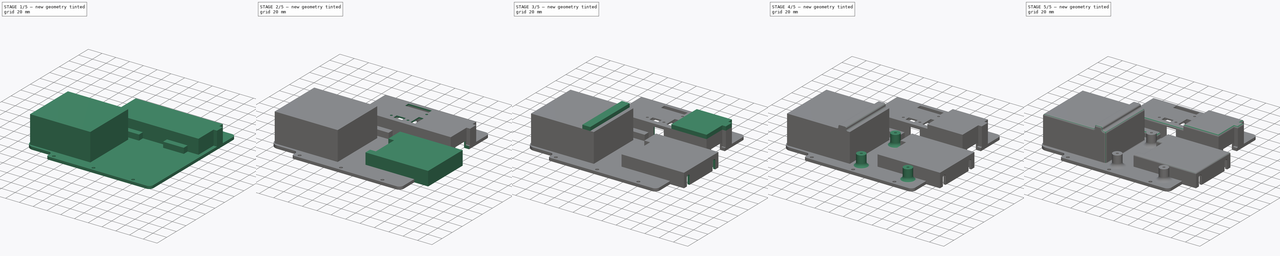
[diagram: build sequence overview — one tinted view per stage of 5, left to right]
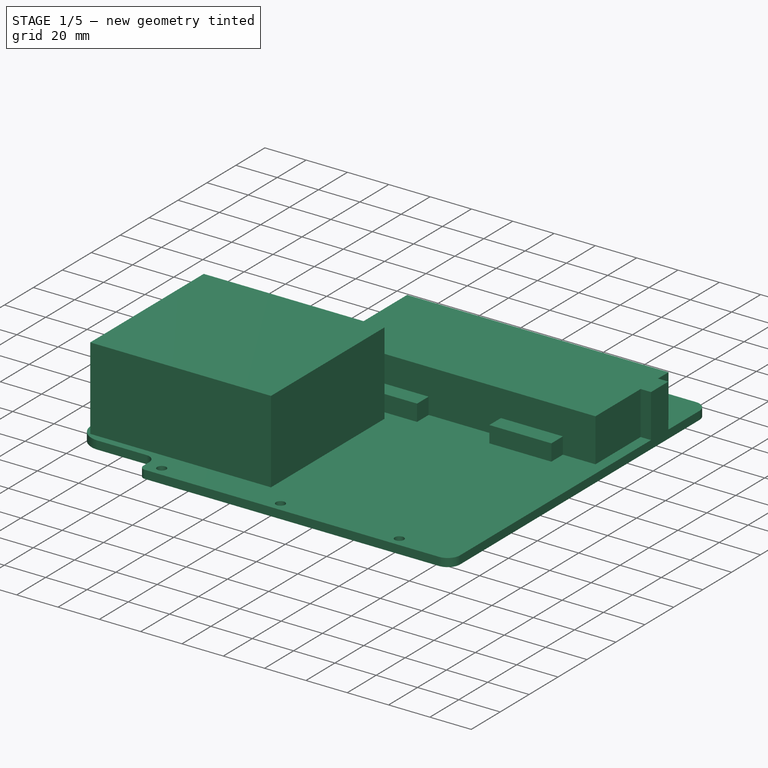
[diagram: stage 1 of 5 — iso view after this stage's code; geometry added in this stage tinted green]
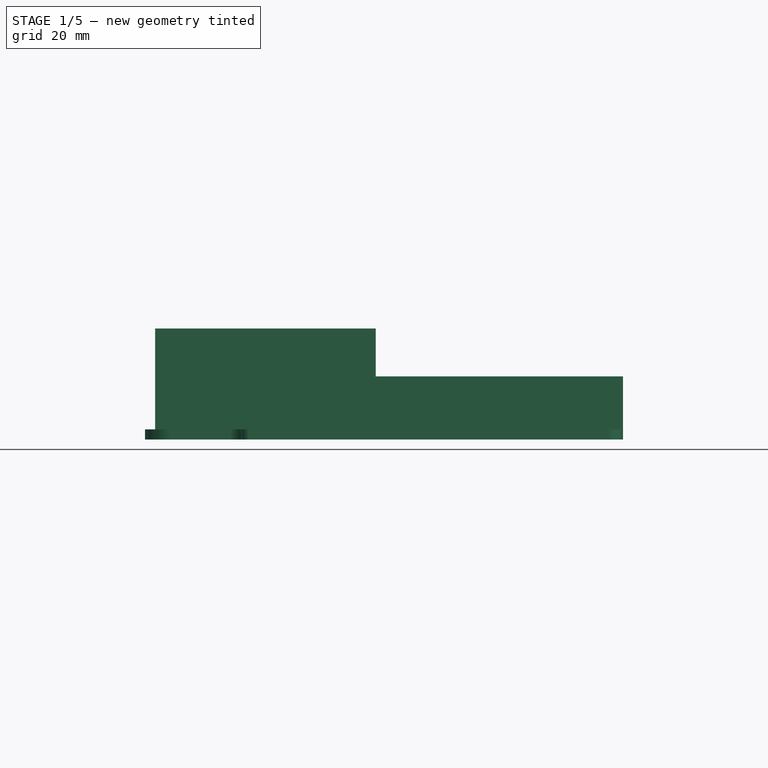
[diagram: stage 1 of 5 — front view after this stage's code; geometry added in this stage tinted green]
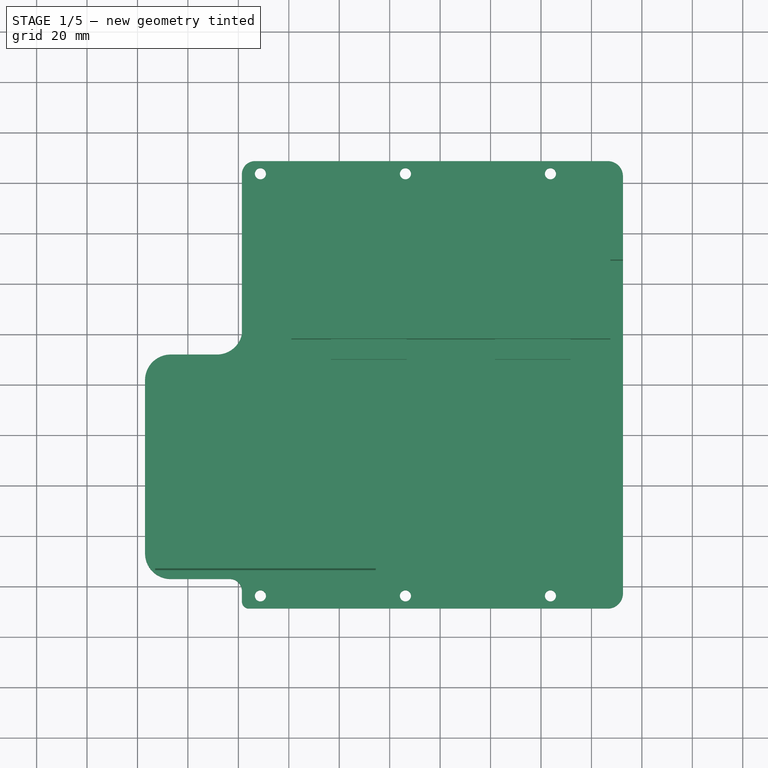
[diagram: stage 1 of 5 — top view after this stage's code; geometry added in this stage tinted green]
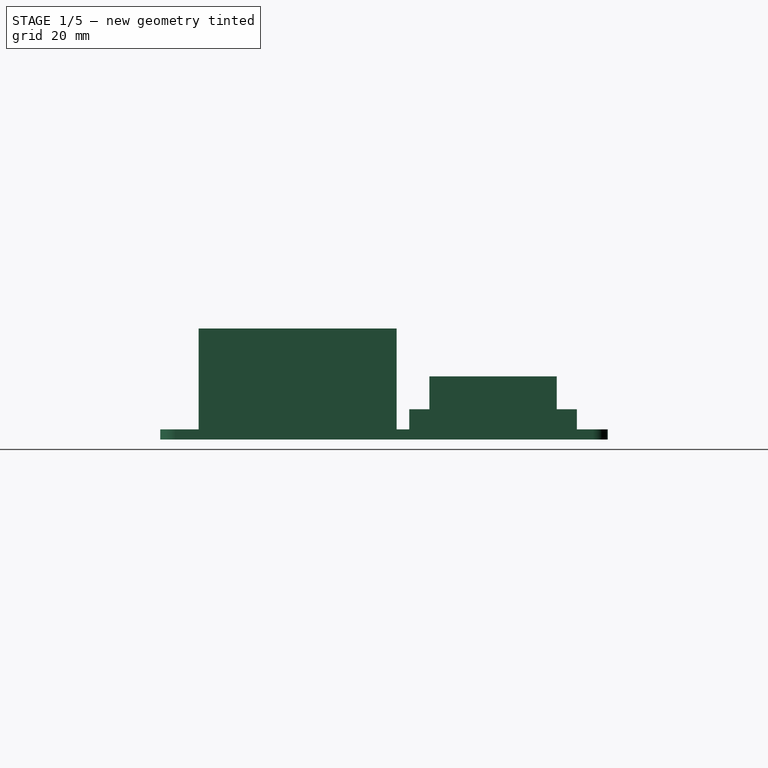
[diagram: stage 1 of 5 — right view after this stage's code; geometry added in this stage tinted green]
FCSTD DOCUMENT  (FreeCAD 0.19R24291 (Git))
Label: electronics-mount
License: All rights reserved
LicenseURL: http://en.wikipedia.org/wiki/All_rights_reserved
objects: Sketcher::SketchObject×27, PartDesign::Pocket×16, PartDesign::Pad×11, PartDesign::Fillet×11, PartDesign::Plane×7, TechDraw::DrawViewDimension×2, App::Link×1, PartDesign::SubShapeBinder×1, Spreadsheet::Sheet×1, TechDraw::DrawSVGTemplate×1, TechDraw::DrawViewPart×1, TechDraw::DrawPage×1, PartDesign::Body×1
note: 112 computed .brp shape members not serialized (recipe doc carries the construction recipe); baked Part::Feature solids carry a one-line shape summary decoded from their .brp
EXTERNAL_REF file=../battery_pack/mounting_plate/Plate.FCStd obj=Fillet

FEATURE [App::Link] Link  label="plate-reference"
  LinkedObject = -> <external ../battery_pack/mounting_plate/Plate.FCStd>#Fillet
FEATURE [PartDesign::SubShapeBinder] Binder  label="plate-reference-binder"
  BindMode = 0
  ClaimChildren = false
  Context = -> Body [Binder.]
  Fuse = false
  MakeFace = true
  PartialLoad = false
  Relative = true
  Support = -> [Link]
  _Version = 2
FEATURE [Sketcher::SketchObject] Sketch  label="mounting_area"
  ExternalGeometry = -> [Binder]
  FullyConstrained = false
  MapMode = 5
  Support = -> [XY_Plane]
  sketch-geometry (30):
    g0: LineSegment StartX=26.5458 StartY=88.7 StartZ=0 EndX=166.5 EndY=88.7 EndZ=0
    g1: LineSegment StartX=172.5 StartY=82.7 StartZ=0 EndX=172.5 EndY=-82.7 EndZ=0
    g2: LineSegment StartX=166.5 StartY=-88.7 StartZ=0 EndX=24.1561 EndY=-88.7 EndZ=0
    g3: Circle CenterX=28.75 CenterY=83.7 CenterZ=0 NormalX=0 NormalY=0 NormalZ=1 AngleXU=0 Radius=2.2
    g4: Circle CenterX=86.25 CenterY=83.7 CenterZ=0 NormalX=0 NormalY=0 NormalZ=1 AngleXU=0 Radius=2.2
    g5: Circle CenterX=143.75 CenterY=83.7 CenterZ=0 NormalX=0 NormalY=0 NormalZ=1 AngleXU=0 Radius=2.2
    g6: Circle CenterX=28.75 CenterY=-83.7 CenterZ=0 NormalX=0 NormalY=0 NormalZ=1 AngleXU=0 Radius=2.2
    g7: Circle CenterX=86.25 CenterY=-83.7 CenterZ=0 NormalX=0 NormalY=0 NormalZ=1 AngleXU=0 Radius=2.2
    g8: Circle CenterX=143.75 CenterY=-83.7 CenterZ=0 NormalX=0 NormalY=0 NormalZ=1 AngleXU=0 Radius=2.2
    g9: ArcOfCircle CenterX=166.5 CenterY=82.7 CenterZ=0 NormalX=0 NormalY=0 NormalZ=1 AngleXU=0 Radius=6 StartAngle=-9e-16 EndAngle=1.5708
    g10: GeomPoint X=172.5 Y=88.7 Z=0
    g11: ArcOfCircle CenterX=166.5 CenterY=-82.7 CenterZ=0 NormalX=0 NormalY=0 NormalZ=1 AngleXU=0 Radius=6 StartAngle=4.71239 EndAngle=6.28319
    g12: GeomPoint X=172.5 Y=-88.7 Z=0
    g13: LineSegment StartX=21.41 StartY=83.5642 StartZ=0 EndX=21.41 EndY=20.0342 EndZ=0
    g14: LineSegment StartX=11.4754 StartY=12 StartZ=0 EndX=-6.8407 EndY=12 EndZ=0
    g15: LineSegment StartX=-17 StartY=1.8407 StartZ=0 EndX=-17 EndY=-66.8407 EndZ=0
    g16: LineSegment StartX=-6.8407 StartY=-77 StartZ=0 EndX=16.6038 EndY=-77 EndZ=0
    g17: ArcOfCircle CenterX=26.5458 CenterY=83.5642 CenterZ=0 NormalX=0 NormalY=0 NormalZ=1 AngleXU=0 Radius=5.13581 StartAngle=1.5708 EndAngle=3.14159
    g18: GeomPoint X=21.41 Y=88.7 Z=0
    g19: ArcOfCircle CenterX=11.4754 CenterY=22.1593 CenterZ=0 NormalX=0 NormalY=0 NormalZ=1 AngleXU=0 Radius=10.1593 StartAngle=4.71239 EndAngle=6.07246
    g20: GeomPoint X=21.41 Y=12 Z=0
    g21: ArcOfCircle CenterX=-6.8407 CenterY=1.8407 CenterZ=0 NormalX=0 NormalY=0 NormalZ=1 AngleXU=0 Radius=10.1593 StartAngle=1.5708 EndAngle=3.14159
    g22: GeomPoint X=-17 Y=12 Z=0
    g23: ArcOfCircle CenterX=-6.8407 CenterY=-66.8407 CenterZ=0 NormalX=0 NormalY=0 NormalZ=1 AngleXU=0 Radius=10.1593 StartAngle=3.14159 EndAngle=4.71239
    g24: GeomPoint X=-17 Y=-77 Z=0
    g25: GeomPoint X=7.79277 Y=-77 Z=0
    g26: GeomPoint X=2.881 Y=-88.7 Z=0
    g27: LineSegment StartX=21.41 StartY=-81.8062 StartZ=0 EndX=21.41 EndY=-85.9539 EndZ=0
    g28: ArcOfCircle CenterX=16.6038 CenterY=-81.8062 CenterZ=0 NormalX=0 NormalY=0 NormalZ=1 AngleXU=0 Radius=4.80619 StartAngle=-1.8e-15 EndAngle=1.5708
    g29: ArcOfCircle CenterX=24.1561 CenterY=-85.9539 CenterZ=0 NormalX=0 NormalY=0 NormalZ=1 AngleXU=0 Radius=2.74612 StartAngle=3.14159 EndAngle=4.71239
  constraints (62):
    c: Horizontal(g0)
    c: Horizontal(g2)
    c: Vertical(g1)
    c: Coincident(g26,g-9)
    c: PointOnObject(g-11,g1)
    c: Coincident(g3,g-3)
    c: Coincident(g4,g-4)
    c: Coincident(g5,g-5)
    c: Coincident(g6,g-6)
    c: Coincident(g7,g-7)
    c: Coincident(g8,g-8)
    c: Equal(g3,g-3)
    c: Equal(g4,g-4)
    c: Equal(g5,g-5)
    c: Equal(g6,g-6)
    c: Equal(g7,g-7)
    c: Equal(g8,g-8)
    c: PointOnObject(g10,g0)
    c: PointOnObject(g10,g1)
    c: Tangent(g0,g9) = 1.5708
    c: Tangent(g1,g9) = 1.5708
    c: PointOnObject(g12,g1)
    c: PointOnObject(g12,g2)
    c: Tangent(g1,g11) = 1.5708
    c: Tangent(g2,g11) = 1.5708
    c: Vertical(g13)
    c: Vertical(g15)
    c: Horizontal(g14)
    c: Horizontal(g16)
    c: PointOnObject(g18,g0)
    c: PointOnObject(g18,g13)
    c: Tangent(g0,g17) = 1.5708
    c: Tangent(g13,g17) = -1.5708
    c: PointOnObject(g20,g13)
    c: PointOnObject(g20,g14)
    c: Tangent(g14,g19) = 1.5708
    c: PointOnObject(g22,g14)
    c: PointOnObject(g22,g15)
    c: Tangent(g14,g21) = -1.5708
    c: Tangent(g15,g21) = -1.5708
    c: PointOnObject(g24,g15)
    c: PointOnObject(g24,g16)
    c: Tangent(g15,g23) = -1.5708
    c: Tangent(g16,g23) = -1.5708
    c: PointOnObject(g25,g16)
    c: Radius(g11) = 6
    c: Radius(g9) = 6
    c: Equal(g19,g21)
    c: Equal(g21,g23)
    c: Coincident(g19,g13)
    c: PointOnObject(g0,g-10)
    c: Vertical(g27)
    c: Tangent(g16,g28) = 1.5708
    c: Tangent(g27,g28) = 1.5708
    c: Tangent(g27,g29) = -1.5708
    c: Tangent(g2,g29) = 1.5708
    c: PointOnObject(g2,g-9)
    c: DistanceX(g27,g13) = 0
    c: DistanceX(g15,g-1) = 17
    c: DistanceY(g-1,g14) = 12
    c: DistanceY(g16,g-1) = 77
    c: DistanceX(g-1,g13) = 21.41
FEATURE [Spreadsheet::Sheet] Spreadsheet  label="measurements"
  cells = A1=escLength; B1(escLength)=122.5; C1=added 1.5mm tolerance (doesn't need to touch); F1=bmsLegnth; G1(bmsLegnth)=81; J1=batteryLength; K1(batteryLength)=81.5; A2=escWidth; B2(escWidth)=46.5; C2=added 1.5mm tolerance (doesn't need to touch); F2=bmsWidth; G2(bmsWidth)=62.5; J2=batteryWidth; K2(batteryWidth)=67.5; A3=escThickness; B3(escThickness)=23; C3=added 1.5mm tolerance (doesn't need to touch); F3=bmsHeight; G3(bmsHeight)=16.5; J3=batteryHeight; K3(batteryHeight)=41; A4=escBaseThickness; B4(escBaseThickness)=6; C4=added 1.0mm tolerance (doesn't need to touch); F4=bmsFilletRadius; G4(bmsFilletRadius)=1; J4=nickleClearance; K4(nickleClearance)=2.5; A5=escConnectorInsetDepth; B5(escConnectorInsetDepth)=4.5; F5=bmsWallThickness; G5(bmsWallThickness)=3; J5=spacerOverlap; K5(spacerOverlap)=5; A6=escMountHoleSeparationLength; B6(escMountHoleSeparationLength)=65.5; F6=bmsBalanceLeadsClearance; G6(bmsBalanceLeadsClearance)=15; J6=batteryWallThickness; K6(batteryWallThickness)=3; A7=escMountHoleSeparationWidth; B7(escMountHoleSeparationWidth)=52.5; F7=bmsBalanceLeadsHeight; G7(bmsBalanceLeadsHeight)=9; A8=escBaseWidthWide; B8(escBaseWidthWide)=62.5; C8=added 1.5mm tolerance (doesn't need to touch); F8=bmsBalanceLeadsThickness; G8(bmsBalanceLeadsThickness)=5; A9=escMountOuterSeparation; B9(escMountOuterSeparation)=91; C9=added 1.0mm tolerance; F9=cableDiameterTenAwg; G9(cableDiameterTenAwg)=5.4; A10=escMountInnerSeparation; B10(escMountInnerSeparation)=39; C10=subtracted 1.0mm tolerance; F10=bmsBatteryLeadsSlotHeight; G10(bmsBatteryLeadsSlotHeight)=11; A11=escFilletRadius; B11(escFilletRadius)=3; F11=bmsBatteryLeadsSeparation; G11(bmsBatteryLeadsSeparation)=51; A12=escFilletRadiusInner; B12(escFilletRadiusInner)=4; F12=bmsBatteryLeadToSideDistance; G12(bmsBatteryLeadToSideDistance)=5.5; A13=escWallThickness; B13(escWallThickness)=2; C13=can be small! esc secured to plate; A14=escNutClearanceRadius; B14(escNutClearanceRadius)=4; C14=adjust if needed! - estimate; J14=mountSeperationUpwards; K14(mountSeperationUpwards)=68; A15=escNutClearanceDepth; B15(escNutClearanceDepth)=4; C15=adjust if needed! - estimate; J15=mountSeparationAcross; K15(mountSeparationAcross)=65; A16=escCableClearenceHeight; B16(escCableClearenceHeight)=4.5; J16=mountPillarRadius; K16(mountPillarRadius)=6; A17=escCableSeparation; B17(escCableSeparation)=12; A18=escCableDiameter; B18(escCableDiameter)=8; A19=escCableClearenceLength; B19(escCableClearenceLength)=16; A20=escXt90ClearenceLength; B20(escXt90ClearenceLength)=26; A21=escEncoderCableClearenceLength; B21(escEncoderCableClearenceLength)=5; C21=note: receiver - NOT encoder; A22=portWidth; B22(portWidth)=6.5; C22=includes tollerance; A23=remotePortLength; B23(remotePortLength)=32.5; A24=hallSensePortLength; B24(hallSensePortLength)=17; A25=canPortLength; B25(canPortLength)=12.5; A26=remotePortOffCenterAlongHorizontal; B26(remotePortOffCenterAlongHorizontal)=11.7; A27=hallSensePortOffCenterAlongHorizontal; B27(hallSensePortOffCenterAlongHorizontal)=5.7; A28=canPortOffCenterAlongHorizontal; B28(canPortOffCenterAlongHorizontal)=14.4; F28=baseThickness; G28(baseThickness)=4; A29=remotePortOffCenterAlongVertical; B29(remotePortOffCenterAlongVertical)=17.8; F29=m3BoltRadius; G29(m3BoltRadius)=1.6; A30=hallSensePortOffCenterAlongVertical; B30(hallSensePortOffCenterAlongVertical)=9.9; F30=m3NutAcrossFlatSides; G30(m3NutAcrossFlatSides)=5.5; A31=canPortOffCenterAlongVertical; B31(canPortOffCenterAlongVertical)=15.7; A32=portsCoverMountingNutAreaDiameter; B32(portsCoverMountingNutAreaDiameter)=9.5; A33=portsCoverMoutingNutOffset; B33(portsCoverMoutingNutOffset)=5.3; A34=portsCoverMountingNutSupportDepth; B34(portsCoverMountingNutSupportDepth)=3; C34=could be up to 4.5mm; A35=receiverCableStoreHeight; B35(receiverCableStoreHeight)=5.5; C35=stow the unused cable; A36=receiverCableStoreLength; B36(receiverCableStoreLength)=45; A37=usbPortSideLength; B37(usbPortSideLength)=14; A38=usbPortOffCentreAlongHorizontal; B38(usbPortOffCentreAlongHorizontal)=3.4; A39=usbPortOffFromXYPlane; B39(usbPortOffFromXYPlane)=7
FEATURE [Sketcher::SketchObject] Sketch001  label="esc"
  FullyConstrained = false
  MapMode = 5
  Support = -> [XY_Plane]
  expr: Constraints[102] = Spreadsheet.portsCoverMoutingNutOffset
  expr: Constraints[101] = Spreadsheet.portsCoverMountingNutAreaDiameter / 2
  expr: Constraints[81] = Spreadsheet.canPortLength
  expr: Constraints[100] = Spreadsheet.portsCoverMountingNutAreaDiameter / 2
  expr: Constraints[50] = Spreadsheet.escMountInnerSeparation
  expr: Constraints[79] = Spreadsheet.remotePortLength
  expr: Constraints[77] = Spreadsheet.portWidth
  expr: Constraints[98] = Spreadsheet.portsCoverMoutingNutOffset
  expr: Constraints[89] = Spreadsheet.hallSensePortOffCenterAlongHorizontal
  expr: Constraints[29] = Spreadsheet.escLength
  expr: Constraints[90] = Spreadsheet.hallSensePortOffCenterAlongVertical
  expr: Constraints[88] = Spreadsheet.remotePortOffCenterAlongVertical
  expr: Constraints[92] = Spreadsheet.canPortOffCenterAlongHorizontal
  expr: Constraints[87] = Spreadsheet.remotePortOffCenterAlongHorizontal
  expr: Constraints[78] = Spreadsheet.portWidth
  expr: Constraints[80] = Spreadsheet.hallSensePortLength
  expr: Constraints[91] = Spreadsheet.canPortOffCenterAlongVertical
  expr: Constraints[51] = Spreadsheet.escMountOuterSeparation
  expr: Constraints[76] = Spreadsheet.portWidth
  expr: Constraints[99] = Spreadsheet.portsCoverMountingNutAreaDiameter / 2
  expr: Constraints[31] = Spreadsheet.escBaseWidthWide
  expr: Constraints[30] = Spreadsheet.escWidth
  expr: Constraints[97] = Spreadsheet.portsCoverMoutingNutOffset
  sketch-geometry (43):
    g0: LineSegment StartX=84.75 StartY=66.5 StartZ=0 EndX=123.75 EndY=66.5 EndZ=0
    g1: LineSegment StartX=123.75 StartY=74.5 StartZ=0 EndX=149.75 EndY=74.5 EndZ=0
    g2: LineSegment StartX=149.75 StartY=66.5 StartZ=0 EndX=165.5 EndY=66.5 EndZ=0
    g3: LineSegment StartX=165.5 StartY=66.5 StartZ=0 EndX=165.5 EndY=20 EndZ=0
    g4: LineSegment StartX=165.5 StartY=20 StartZ=0 EndX=149.75 EndY=20 EndZ=0
    g5: LineSegment StartX=149.75 StartY=12 StartZ=0 EndX=123.75 EndY=12 EndZ=0
    g6: LineSegment StartX=123.75 StartY=20 StartZ=0 EndX=84.75 EndY=20 EndZ=0
    g7: LineSegment StartX=84.75 StartY=12 StartZ=0 EndX=58.75 EndY=12 EndZ=0
    g8: LineSegment StartX=84.75 StartY=74.5 StartZ=0 EndX=58.75 EndY=74.5 EndZ=0
    g9: LineSegment StartX=58.75 StartY=66.5 StartZ=0 EndX=43 EndY=66.5 EndZ=0
    g10: LineSegment StartX=58.75 StartY=20 StartZ=0 EndX=43 EndY=20 EndZ=0
    g11: LineSegment StartX=43 StartY=20 StartZ=0 EndX=43 EndY=66.5 EndZ=0
    g12: LineSegment StartX=149.75 StartY=74.5 StartZ=0 EndX=149.75 EndY=66.5 EndZ=0
    g13: LineSegment StartX=123.75 StartY=74.5 StartZ=0 EndX=123.75 EndY=66.5 EndZ=0
    g14: LineSegment StartX=84.75 StartY=66.5 StartZ=0 EndX=84.75 EndY=74.5 EndZ=0
    g15: LineSegment StartX=58.75 StartY=74.5 StartZ=0 EndX=58.75 EndY=66.5 EndZ=0
    g16: LineSegment StartX=58.75 StartY=20 StartZ=0 EndX=58.75 EndY=12 EndZ=0
    g17: LineSegment StartX=84.75 StartY=12 StartZ=0 EndX=84.75 EndY=20 EndZ=0
    g18: LineSegment StartX=123.75 StartY=20 StartZ=0 EndX=123.75 EndY=12 EndZ=0
    g19: LineSegment StartX=149.75 StartY=12 StartZ=0 EndX=149.75 EndY=20 EndZ=0
    g20: LineSegment StartX=165.5 StartY=43.25 StartZ=0 EndX=43 EndY=43.25 EndZ=0
    g21: LineSegment StartX=104.25 StartY=66.5 StartZ=0 EndX=104.25 EndY=20 EndZ=0
    g22: LineSegment StartX=76.3 StartY=64.3 StartZ=0 EndX=108.8 EndY=64.3 EndZ=0
    g23: LineSegment StartX=108.8 StartY=64.3 StartZ=0 EndX=108.8 EndY=57.8 EndZ=0
    g24: LineSegment StartX=108.8 StartY=57.8 StartZ=0 EndX=76.3 EndY=57.8 EndZ=0
    g25: LineSegment StartX=76.3 StartY=57.8 StartZ=0 EndX=76.3 EndY=64.3 EndZ=0
    g26: LineSegment StartX=106.7 StartY=41.85 StartZ=0 EndX=113.2 EndY=41.85 EndZ=0
    g27: LineSegment StartX=113.2 StartY=41.85 StartZ=0 EndX=113.2 EndY=24.85 EndZ=0
    g28: LineSegment StartX=113.2 StartY=24.85 StartZ=0 EndX=106.7 EndY=24.85 EndZ=0
    g29: LineSegment StartX=106.7 StartY=24.85 StartZ=0 EndX=106.7 EndY=41.85 EndZ=0
    g30: LineSegment StartX=96.1 StartY=30.8 StartZ=0 EndX=83.6 EndY=30.8 EndZ=0
    g31: LineSegment StartX=83.6 StartY=30.8 StartZ=0 EndX=83.6 EndY=24.3 EndZ=0
    g32: LineSegment StartX=83.6 StartY=24.3 StartZ=0 EndX=96.1 EndY=24.3 EndZ=0
    g33: LineSegment StartX=96.1 StartY=24.3 StartZ=0 EndX=96.1 EndY=30.8 EndZ=0
    g34: LineSegment StartX=55.692 StartY=61.05 StartZ=0 EndX=95.2387 EndY=61.05 EndZ=0
    g35: LineSegment StartX=92.55 StartY=57.0195 StartZ=0 EndX=92.55 EndY=70.6026 EndZ=0
    g36: LineSegment StartX=82.8661 StartY=27.55 StartZ=0 EndX=62.3252 EndY=27.55 EndZ=0
    g37: LineSegment StartX=89.85 StartY=40.3875 StartZ=0 EndX=89.85 EndY=25.2566 EndZ=0
    g38: LineSegment StartX=104.18 StartY=33.35 StartZ=0 EndX=87.6735 EndY=33.35 EndZ=0
    g39: LineSegment StartX=109.95 StartY=50.1626 StartZ=0 EndX=109.95 EndY=26.9331 EndZ=0
    g40: Circle CenterX=101.4 CenterY=27.55 CenterZ=0 NormalX=0 NormalY=0 NormalZ=1 AngleXU=0 Radius=4.75
    g41: Circle CenterX=78.3 CenterY=27.55 CenterZ=0 NormalX=0 NormalY=0 NormalZ=1 AngleXU=0 Radius=4.75
    g42: Circle CenterX=109.95 CenterY=52.5 CenterZ=0 NormalX=0 NormalY=0 NormalZ=1 AngleXU=0 Radius=4.75
  constraints (105):
    c: Horizontal(g0)
    c: Horizontal(g1)
    c: Vertical(g3)
    c: Horizontal(g4)
    c: Horizontal(g5)
    c: Vertical(g11)
    c: Horizontal(g7)
    c: Coincident(g12,g1)
    c: Coincident(g12,g2)
    c: Coincident(g13,g1)
    c: Coincident(g13,g0)
    c: Coincident(g14,g0)
    c: Coincident(g14,g8)
    c: Coincident(g15,g8)
    c: Coincident(g15,g9)
    c: Coincident(g16,g10)
    c: Coincident(g16,g7)
    c: Coincident(g17,g7)
    c: Coincident(g17,g6)
    c: Coincident(g18,g6)
    c: Coincident(g18,g5)
    c: Coincident(g19,g5)
    c: Coincident(g19,g4)
    c: Vertical(g13)
    c: Vertical(g15)
    c: Coincident(g2,g3)
    c: Coincident(g4,g3)
    c: Coincident(g10,g11)
    c: Coincident(g9,g11)
    c: Distance(g2,g9) = 122.5
    c: Distance(g3) = 46.5
    c: Distance(g1,g5) = 62.5
    c: Tangent(g14,g17)
    c: Tangent(g2,g0)
    c: Tangent(g9,g0)
    c: Tangent(g4,g6)
    c: Tangent(g10,g6)
    c: Tangent(g15,g16)
    c: Tangent(g18,g13)
    c: Tangent(g12,g19)
    c: PointOnObject(g20,g3)
    c: PointOnObject(g20,g11)
    c: Symmetric(g2,g3,g20)
    c: Symmetric(g1,g5,g20)
    c: Symmetric(g7,g8,g20)
    c: PointOnObject(g21,g0)
    c: PointOnObject(g21,g6)
    c: Symmetric(g2,g9,g21)
    c: Symmetric(g1,g8,g21)
    c: Symmetric(g1,g8,g21)
    c: Distance(g0) = 39
    c: Distance(g2,g9) = 91
    c: Coincident(g22,g23)
    c: Coincident(g23,g24)
    c: Coincident(g24,g25)
    c: Coincident(g25,g22)
    c: Horizontal(g22)
    c: Horizontal(g24)
    c: Vertical(g23)
    c: Vertical(g25)
    c: Coincident(g26,g27)
    c: Coincident(g27,g28)
    c: Coincident(g28,g29)
    c: Coincident(g29,g26)
    c: Horizontal(g26)
    c: Horizontal(g28)
    c: Vertical(g27)
    c: Vertical(g29)
    c: Coincident(g30,g31)
    c: Coincident(g31,g32)
    c: Coincident(g32,g33)
    c: Coincident(g33,g30)
    c: Horizontal(g30)
    c: Horizontal(g32)
    c: Vertical(g31)
    c: Vertical(g33)
    c: Distance(g23) = 6.5
    c: Distance(g26) = 6.5
    c: Distance(g33) = 6.5
    c: Distance(g24) = 32.5
    c: Distance(g27) = 17
    c: Distance(g32) = 12.5
    c: Symmetric(g22,g22,g35)
    c: Symmetric(g23,g22,g34)
    c: Symmetric(g26,g26,g39)
    c: Symmetric(g27,g26,g38)
    c: Symmetric(g31,g32,g37)
    c: Distance(g35,g21) = 11.7
    c: Distance(g34,g20) = 17.8
    c: Distance(g39,g21) = 5.7
    c: Distance(g38,g20) = 9.9
    c: Distance(g36,g20) = 15.7
    c: Distance(g37,g21) = 14.4
    c: Symmetric(g32,g30,g36)
    c: PointOnObject(g42,g39)
    c: PointOnObject(g40,g36)
    c: PointOnObject(g41,g36)
    c: Distance(g40,g33) = 5.3
    c: Distance(g41,g31) = 5.3
    c: Radius(g42) = 4.75
    c: Radius(g40) = 4.75
    c: Radius(g41) = 4.75
    c: DistanceY(g42,g23) = 5.3
    c: DistanceY(g-1,g10) = 20
    c: DistanceX(g-1,g10) = 43
FEATURE [Sketcher::SketchObject] Sketch002  label="escBase"
  ExternalGeometry = -> [Sketch001]
  FullyConstrained = true
  MapMode = 5
  Support = -> [XY_Plane]
  expr: Constraints[119] = Spreadsheet.escFilletRadius
  expr: Constraints[118] = Spreadsheet.escFilletRadius
  expr: Constraints[116] = Spreadsheet.escFilletRadiusInner
  expr: Constraints[115] = Spreadsheet.escFilletRadius
  expr: Constraints[117] = Spreadsheet.escFilletRadiusInner
  expr: Constraints[113] = Spreadsheet.escFilletRadiusInner
  expr: Constraints[112] = Spreadsheet.escFilletRadius
  expr: Constraints[110] = Spreadsheet.escFilletRadiusInner
  expr: Constraints[107] = Spreadsheet.escFilletRadiusInner
  expr: Constraints[106] = Spreadsheet.escFilletRadiusInner
  expr: Constraints[114] = Spreadsheet.escFilletRadius
  expr: Constraints[104] = Spreadsheet.escFilletRadius
  expr: Constraints[103] = Spreadsheet.escFilletRadiusInner
  expr: Constraints[111] = Spreadsheet.escFilletRadius
  expr: Constraints[102] = Spreadsheet.escFilletRadius
  expr: Constraints[109] = Spreadsheet.escFilletRadius
  expr: Constraints[101] = Spreadsheet.escFilletRadius
  expr: Constraints[108] = Spreadsheet.escFilletRadius
  expr: Constraints[100] = Spreadsheet.escFilletRadiusInner
  expr: Constraints[105] = Spreadsheet.escFilletRadius
  sketch-geometry (60):
    g0: LineSegment StartX=81.75 StartY=74.5 StartZ=0 EndX=61.75 EndY=74.5 EndZ=0
    g1: LineSegment StartX=58.75 StartY=71.5 StartZ=0 EndX=58.75 EndY=70.5 EndZ=0
    g2: LineSegment StartX=54.75 StartY=66.5 StartZ=0 EndX=46 EndY=66.5 EndZ=0
    g3: LineSegment StartX=43 StartY=63.5 StartZ=0 EndX=43 EndY=23 EndZ=0
    g4: LineSegment StartX=46 StartY=20 StartZ=0 EndX=54.75 EndY=20 EndZ=0
    g5: LineSegment StartX=58.75 StartY=16 StartZ=0 EndX=58.75 EndY=15 EndZ=0
    g6: LineSegment StartX=61.75 StartY=12 StartZ=0 EndX=81.75 EndY=12 EndZ=0
    g7: LineSegment StartX=84.75 StartY=15 StartZ=0 EndX=84.75 EndY=16 EndZ=0
    g8: LineSegment StartX=88.75 StartY=20 StartZ=0 EndX=119.75 EndY=20 EndZ=0
    g9: LineSegment StartX=123.75 StartY=16 StartZ=0 EndX=123.75 EndY=15 EndZ=0
    g10: LineSegment StartX=126.75 StartY=12 StartZ=0 EndX=146.75 EndY=12 EndZ=0
    g11: LineSegment StartX=149.75 StartY=15 StartZ=0 EndX=149.75 EndY=16 EndZ=0
    g12: LineSegment StartX=153.75 StartY=20 StartZ=0 EndX=162.5 EndY=20 EndZ=0
    g13: LineSegment StartX=165.5 StartY=23 StartZ=0 EndX=165.5 EndY=63.5 EndZ=0
    g14: LineSegment StartX=162.5 StartY=66.5 StartZ=0 EndX=153.75 EndY=66.5 EndZ=0
    g15: LineSegment StartX=149.75 StartY=70.5 StartZ=0 EndX=149.75 EndY=71.5 EndZ=0
    g16: LineSegment StartX=146.75 StartY=74.5 StartZ=0 EndX=126.75 EndY=74.5 EndZ=0
    g17: LineSegment StartX=123.75 StartY=71.5 StartZ=0 EndX=123.75 EndY=70.5 EndZ=0
    g18: LineSegment StartX=119.75 StartY=66.5 StartZ=0 EndX=88.75 EndY=66.5 EndZ=0
    g19: LineSegment StartX=84.75 StartY=70.5 StartZ=0 EndX=84.75 EndY=71.5 EndZ=0
    g20: ArcOfCircle CenterX=153.75 CenterY=70.5 CenterZ=0 NormalX=0 NormalY=0 NormalZ=1 AngleXU=0 Radius=4 StartAngle=3.14159 EndAngle=4.71239
    g21: GeomPoint X=149.75 Y=66.5 Z=0
    g22: ArcOfCircle CenterX=146.75 CenterY=71.5 CenterZ=0 NormalX=0 NormalY=0 NormalZ=1 AngleXU=0 Radius=3 StartAngle=1.125e-13 EndAngle=1.5708
    g23: GeomPoint X=149.75 Y=74.5 Z=0
    g24: ArcOfCircle CenterX=119.75 CenterY=70.5 CenterZ=0 NormalX=0 NormalY=0 NormalZ=1 AngleXU=0 Radius=4 StartAngle=4.71239 EndAngle=6.28319
    g25: GeomPoint X=123.75 Y=66.5 Z=0
    g26: ArcOfCircle CenterX=126.75 CenterY=71.5 CenterZ=0 NormalX=0 NormalY=0 NormalZ=1 AngleXU=0 Radius=3 StartAngle=1.5708 EndAngle=3.14159
    g27: GeomPoint X=123.75 Y=74.5 Z=0
    g28: ArcOfCircle CenterX=88.75 CenterY=70.5 CenterZ=0 NormalX=0 NormalY=0 NormalZ=1 AngleXU=0 Radius=4 StartAngle=3.14159 EndAngle=4.71239
    g29: GeomPoint X=84.75 Y=66.5 Z=0
    g30: ArcOfCircle CenterX=81.75 CenterY=71.5 CenterZ=0 NormalX=0 NormalY=0 NormalZ=1 AngleXU=0 Radius=3 StartAngle=-5.86e-14 EndAngle=1.5708
    g31: GeomPoint X=84.75 Y=74.5 Z=0
    g32: ArcOfCircle CenterX=54.75 CenterY=70.5 CenterZ=0 NormalX=0 NormalY=0 NormalZ=1 AngleXU=0 Radius=4 StartAngle=4.71239 EndAngle=6.28319
    g33: GeomPoint X=58.75 Y=66.5 Z=0
    g34: ArcOfCircle CenterX=61.75 CenterY=71.5 CenterZ=0 NormalX=0 NormalY=0 NormalZ=1 AngleXU=0 Radius=3 StartAngle=1.5708 EndAngle=3.14159
    g35: GeomPoint X=58.75 Y=74.5 Z=0
    g36: ArcOfCircle CenterX=46 CenterY=63.5 CenterZ=0 NormalX=0 NormalY=0 NormalZ=1 AngleXU=0 Radius=3 StartAngle=1.5708 EndAngle=3.14159
    g37: GeomPoint X=43 Y=66.5 Z=0
    g38: ArcOfCircle CenterX=46 CenterY=23 CenterZ=0 NormalX=0 NormalY=0 NormalZ=1 AngleXU=0 Radius=3 StartAngle=3.14159 EndAngle=4.71239
    g39: GeomPoint X=43 Y=20 Z=0
    g40: ArcOfCircle CenterX=54.75 CenterY=16 CenterZ=0 NormalX=0 NormalY=0 NormalZ=1 AngleXU=0 Radius=4 StartAngle=-7.1e-15 EndAngle=1.5708
    g41: GeomPoint X=58.75 Y=20 Z=0
    g42: ArcOfCircle CenterX=61.75 CenterY=15 CenterZ=0 NormalX=0 NormalY=0 NormalZ=1 AngleXU=0 Radius=3 StartAngle=3.14159 EndAngle=4.71239
    g43: GeomPoint X=58.75 Y=12 Z=0
    g44: ArcOfCircle CenterX=81.75 CenterY=15 CenterZ=0 NormalX=0 NormalY=0 NormalZ=1 AngleXU=0 Radius=3 StartAngle=4.71239 EndAngle=6.28319
    g45: GeomPoint X=84.75 Y=12 Z=0
    g46: ArcOfCircle CenterX=88.75 CenterY=16 CenterZ=0 NormalX=0 NormalY=0 NormalZ=1 AngleXU=0 Radius=4 StartAngle=1.5708 EndAngle=3.14159
    g47: GeomPoint X=84.75 Y=20 Z=0
    g48: ArcOfCircle CenterX=119.75 CenterY=16 CenterZ=0 NormalX=0 NormalY=0 NormalZ=1 AngleXU=0 Radius=4 StartAngle=0 EndAngle=1.5708
    g49: GeomPoint X=123.75 Y=20 Z=0
    g50: ArcOfCircle CenterX=126.75 CenterY=15 CenterZ=0 NormalX=0 NormalY=0 NormalZ=1 AngleXU=0 Radius=3 StartAngle=3.14159 EndAngle=4.71239
    g51: GeomPoint X=123.75 Y=12 Z=0
    g52: ArcOfCircle CenterX=146.75 CenterY=15 CenterZ=0 NormalX=0 NormalY=0 NormalZ=1 AngleXU=0 Radius=3 StartAngle=4.71239 EndAngle=6.28319
    g53: GeomPoint X=149.75 Y=12 Z=0
    g54: ArcOfCircle CenterX=153.75 CenterY=16 CenterZ=0 NormalX=0 NormalY=0 NormalZ=1 AngleXU=0 Radius=4 StartAngle=1.5708 EndAngle=3.14159
    g55: GeomPoint X=149.75 Y=20 Z=0
    g56: ArcOfCircle CenterX=162.5 CenterY=23 CenterZ=0 NormalX=0 NormalY=0 NormalZ=1 AngleXU=0 Radius=3 StartAngle=4.71239 EndAngle=6.28319
    g57: GeomPoint X=165.5 Y=20 Z=0
    g58: ArcOfCircle CenterX=162.5 CenterY=63.5 CenterZ=0 NormalX=0 NormalY=0 NormalZ=1 AngleXU=0 Radius=3 StartAngle=4e-16 EndAngle=1.5708
    g59: GeomPoint X=165.5 Y=66.5 Z=0
  constraints (120):
    c: Coincident(g31,g-22)
    c: Coincident(g35,g-4)
    c: Coincident(g33,g-5)
    c: Coincident(g37,g-6)
    c: Coincident(g39,g-7)
    c: Coincident(g41,g-8)
    c: Coincident(g43,g-9)
    c: Coincident(g45,g-10)
    c: Coincident(g47,g-11)
    c: Coincident(g49,g-12)
    c: Coincident(g51,g-13)
    c: Coincident(g53,g-14)
    c: Coincident(g55,g-15)
    c: Coincident(g57,g-16)
    c: Coincident(g59,g-17)
    c: Coincident(g21,g-18)
    c: Coincident(g23,g-19)
    c: Coincident(g27,g-21)
    c: Coincident(g25,g-21)
    c: Coincident(g29,g-22)
    c: PointOnObject(g21,g14)
    c: PointOnObject(g21,g15)
    c: Tangent(g14,g20) = 1.5708
    c: Tangent(g15,g20) = 1.5708
    c: PointOnObject(g23,g15)
    c: PointOnObject(g23,g16)
    c: Tangent(g15,g22) = -1.5708
    c: Tangent(g16,g22) = -1.5708
    c: PointOnObject(g25,g17)
    c: PointOnObject(g25,g18)
    c: Tangent(g17,g24) = 1.5708
    c: Tangent(g18,g24) = 1.5708
    c: PointOnObject(g27,g16)
    c: PointOnObject(g27,g17)
    c: Tangent(g16,g26) = -1.5708
    c: Tangent(g17,g26) = -1.5708
    c: PointOnObject(g29,g19)
    c: PointOnObject(g29,g18)
    c: Tangent(g19,g28) = 1.5708
    c: Tangent(g18,g28) = 1.5708
    c: PointOnObject(g31,g19)
    c: PointOnObject(g31,g0)
    c: Tangent(g19,g30) = -1.5708
    c: Tangent(g0,g30) = -1.5708
    c: PointOnObject(g33,g1)
    c: PointOnObject(g33,g2)
    c: Tangent(g1,g32) = 1.5708
    c: Tangent(g2,g32) = 1.5708
    c: PointOnObject(g35,g0)
    c: PointOnObject(g35,g1)
    c: Tangent(g0,g34) = -1.5708
    c: Tangent(g1,g34) = -1.5708
    c: PointOnObject(g37,g3)
    c: PointOnObject(g37,g2)
    c: Tangent(g3,g36) = -1.5708
    c: Tangent(g2,g36) = -1.5708
    c: PointOnObject(g39,g4)
    c: PointOnObject(g39,g3)
    c: Tangent(g4,g38) = -1.5708
    c: Tangent(g3,g38) = -1.5708
    c: PointOnObject(g41,g4)
    c: PointOnObject(g41,g5)
    c: Tangent(g4,g40) = 1.5708
    c: Tangent(g5,g40) = 1.5708
    c: PointOnObject(g43,g5)
    c: PointOnObject(g43,g6)
    c: Tangent(g5,g42) = -1.5708
    c: Tangent(g6,g42) = -1.5708
    c: PointOnObject(g45,g6)
    c: PointOnObject(g45,g7)
    c: Tangent(g6,g44) = -1.5708
    c: Tangent(g7,g44) = -1.5708
    c: PointOnObject(g47,g7)
    c: PointOnObject(g47,g8)
    c: Tangent(g7,g46) = 1.5708
    c: Tangent(g8,g46) = 1.5708
    c: PointOnObject(g49,g8)
    c: PointOnObject(g49,g9)
    c: Tangent(g8,g48) = 1.5708
    c: Tangent(g9,g48) = 1.5708
    c: PointOnObject(g51,g9)
    c: PointOnObject(g51,g10)
    c: Tangent(g9,g50) = -1.5708
    c: Tangent(g10,g50) = -1.5708
    c: PointOnObject(g53,g10)
    c: PointOnObject(g53,g11)
    c: Tangent(g10,g52) = -1.5708
    c: Tangent(g11,g52) = -1.5708
    c: PointOnObject(g55,g11)
    c: PointOnObject(g55,g12)
    c: Tangent(g11,g54) = 1.5708
    c: Tangent(g12,g54) = 1.5708
    c: PointOnObject(g57,g12)
    c: PointOnObject(g57,g13)
    c: Tangent(g12,g56) = -1.5708
    c: Tangent(g13,g56) = -1.5708
    c: PointOnObject(g59,g13)
    c: PointOnObject(g59,g14)
    c: Tangent(g13,g58) = -1.5708
    c: Tangent(g14,g58) = -1.5708
    c: Distance(g20,g14) = 4
    c: Distance(g58,g13) = 3
    c: Distance(g56,g13) = 3
    c: Distance(g12,g54) = 4
    c: Distance(g52,g11) = 3
    c: Distance(g9,g50) = 3
    c: Distance(g8,g48) = 4
    c: Distance(g8,g46) = 4
    c: Distance(g7,g44) = 3
    c: Distance(g5,g42) = 3
    c: Distance(g40,g4) = 4
    c: Distance(g4,g38) = 3
    c: Distance(g2,g36) = 3
    c: Distance(g32,g2) = 4
    c: Distance(g34,g0) = 3
    c: Distance(g0,g30) = 3
    c: Distance(g19,g28) = 4
    c: Distance(g24,g17) = 4
    c: Distance(g17,g26) = 3
    c: Distance(g22,g15) = 3
FEATURE [PartDesign::Plane] DatumPlane  label="topOfMountingAreaPad"
  AttachmentOffset = pos=(0,0,4) rot=(0,0,1;0rad)
  Length = 255.959
  MapMode = 5
  Placement = pos=(0,0,4) rot=(0,0,1;0rad)
  ResizeMode = 0
  Support = -> [XY_Plane]
  Width = 216.617
  expr: .AttachmentOffset.Base.z = Spreadsheet.baseThickness
FEATURE [Sketcher::SketchObject] Sketch003  label="escBody"
  ExternalGeometry = -> [Sketch001]
  FullyConstrained = false
  MapMode = 5
  Placement = pos=(0,0,4) rot=(0,0,1;0rad)
  Support = -> [DatumPlane]
  expr: Constraints[22] = Spreadsheet.escFilletRadius
  expr: Constraints[21] = Spreadsheet.escFilletRadius
  expr: Constraints[23] = Spreadsheet.escFilletRadius
  expr: Constraints[33] = Spreadsheet.escEncoderCableClearenceLength
  expr: Constraints[34] = Spreadsheet.escCableDiameter
  expr: Constraints[24] = Spreadsheet.escFilletRadius
  expr: Constraints[36] = Spreadsheet.escCableSeparation
  sketch-geometry (18):
    g0: LineSegment StartX=46 StartY=66.5 StartZ=0 EndX=162.5 EndY=66.5 EndZ=0
    g1: LineSegment StartX=165.5 StartY=63.5 StartZ=0 EndX=165.5 EndY=59.25 EndZ=0
    g2: LineSegment StartX=162.5 StartY=20 StartZ=0 EndX=46 EndY=20 EndZ=0
    g3: LineSegment StartX=43 StartY=23 StartZ=0 EndX=43 EndY=63.5 EndZ=0
    g4: ArcOfCircle CenterX=162.5 CenterY=63.5 CenterZ=0 NormalX=0 NormalY=0 NormalZ=1 AngleXU=0 Radius=3 StartAngle=2e-16 EndAngle=1.5708
    g5: GeomPoint X=165.5 Y=66.5 Z=0
    g6: ArcOfCircle CenterX=46 CenterY=63.5 CenterZ=0 NormalX=0 NormalY=0 NormalZ=1 AngleXU=0 Radius=3 StartAngle=1.5708 EndAngle=3.14159
    g7: GeomPoint X=43 Y=66.5 Z=0
    g8: ArcOfCircle CenterX=46 CenterY=23 CenterZ=0 NormalX=0 NormalY=0 NormalZ=1 AngleXU=0 Radius=3 StartAngle=3.14159 EndAngle=4.71239
    g9: GeomPoint X=43 Y=20 Z=0
    g10: ArcOfCircle CenterX=162.5 CenterY=23 CenterZ=0 NormalX=0 NormalY=0 NormalZ=1 AngleXU=0 Radius=3 StartAngle=4.71239 EndAngle=6.28319
    g11: GeomPoint X=165.5 Y=20 Z=0
    g12: LineSegment StartX=165.5 StartY=59.25 StartZ=0 EndX=170.5 EndY=59.25 EndZ=0
    g13: LineSegment StartX=170.5 StartY=59.25 StartZ=0 EndX=170.5 EndY=51.25 EndZ=0
    g14: LineSegment StartX=170.5 StartY=51.25 StartZ=0 EndX=165.5 EndY=51.25 EndZ=0
    g15: LineSegment StartX=165.5 StartY=51.25 StartZ=0 EndX=165.5 EndY=23 EndZ=0
    g16: LineSegment StartX=136.305 StartY=55.25 StartZ=0 EndX=168.976 EndY=55.25 EndZ=0
    g17: LineSegment StartX=172.108 StartY=43.25 StartZ=0 EndX=134.655 EndY=43.25 EndZ=0
  constraints (39):
    c: Horizontal(g0)
    c: Horizontal(g2)
    c: Vertical(g1)
    c: Vertical(g3)
    c: Coincident(g7,g-3)
    c: Coincident(g11,g-4)
    c: PointOnObject(g5,g0)
    c: PointOnObject(g5,g1)
    c: Tangent(g0,g4) = 1.5708
    c: Tangent(g1,g4) = 1.5708
    c: PointOnObject(g7,g0)
    c: PointOnObject(g7,g3)
    c: Tangent(g0,g6) = 1.5708
    c: Tangent(g3,g6) = 1.5708
    c: PointOnObject(g9,g3)
    c: PointOnObject(g9,g2)
    c: Tangent(g3,g8) = 1.5708
    c: Tangent(g2,g8) = 1.5708
    c: PointOnObject(g11,g2)
    c: Tangent(g2,g10) = 1.5708
    c: Coincident(g15,g10) = 1.5708
    c: Distance(g0,g4) = 3
    c: Distance(g10,g2) = 3
    c: Distance(g8,g2) = 3
    c: Distance(g0,g6) = 3
    c: Horizontal(g12)
    c: Coincident(g13,g12)
    c: Vertical(g13)
    c: Coincident(g14,g13)
    c: Horizontal(g14)
    c: Coincident(g1,g12)
    c: Coincident(g15,g14)
    c: Tangent(g1,g15)
    c: Distance(g14) = 5
    c: Distance(g13) = 8
    c: Symmetric(g1,g14,g16)
    c: DistanceY(g17,g16) = 12
    c: Symmetric(g5,g11,g17)
    c: Symmetric(g1,g10,g17)
FEATURE [Sketcher::SketchObject] Sketch004  label="bmsPrimaryOutlineAndPosition"
  FullyConstrained = false
  MapMode = 5
  Support = -> [XY_Plane]
  expr: Constraints[24] = Spreadsheet.bmsFilletRadius
  expr: Constraints[23] = Spreadsheet.bmsFilletRadius
  expr: Constraints[25] = Spreadsheet.bmsFilletRadius
  expr: Constraints[22] = Spreadsheet.bmsFilletRadius
  expr: Constraints[5] = Spreadsheet.bmsWidth
  expr: Constraints[4] = Spreadsheet.bmsLegnth
  sketch-geometry (12):
    g0: LineSegment StartX=108.742 StartY=4 StartZ=0 EndX=187.742 EndY=4 EndZ=0
    g1: LineSegment StartX=188.742 StartY=3 StartZ=0 EndX=188.742 EndY=-57.5 EndZ=0
    g2: LineSegment StartX=187.742 StartY=-58.5 StartZ=0 EndX=108.742 EndY=-58.5 EndZ=0
    g3: LineSegment StartX=107.742 StartY=-57.5 StartZ=0 EndX=107.742 EndY=3 EndZ=0
    g4: ArcOfCircle CenterX=187.742 CenterY=3 CenterZ=0 NormalX=0 NormalY=0 NormalZ=1 AngleXU=0 Radius=1 StartAngle=0 EndAngle=1.5708
    g5: GeomPoint X=188.742 Y=4 Z=0
    g6: ArcOfCircle CenterX=187.742 CenterY=-57.5 CenterZ=0 NormalX=0 NormalY=0 NormalZ=1 AngleXU=0 Radius=1 StartAngle=4.71239 EndAngle=6.28319
    g7: GeomPoint X=188.742 Y=-58.5 Z=0
    g8: ArcOfCircle CenterX=108.742 CenterY=-57.5 CenterZ=0 NormalX=0 NormalY=0 NormalZ=1 AngleXU=0 Radius=1 StartAngle=3.14159 EndAngle=4.71239
    g9: GeomPoint X=107.742 Y=-58.5 Z=0
    g10: ArcOfCircle CenterX=108.742 CenterY=3 CenterZ=0 NormalX=0 NormalY=0 NormalZ=1 AngleXU=0 Radius=1 StartAngle=1.5708 EndAngle=3.14159
    g11: GeomPoint X=107.742 Y=4 Z=0
  constraints (27):
    c: Horizontal(g0)
    c: Horizontal(g2)
    c: Vertical(g1)
    c: Vertical(g3)
    c: Distance(g5,g11) = 81
    c: Distance(g7,g5) = 62.5
    c: PointOnObject(g5,g1)
    c: PointOnObject(g5,g0)
    c: Tangent(g1,g4) = 1.5708
    c: Tangent(g0,g4) = 1.5708
    c: PointOnObject(g7,g1)
    c: PointOnObject(g7,g2)
    c: Tangent(g1,g6) = 1.5708
    c: Tangent(g2,g6) = 1.5708
    c: PointOnObject(g9,g2)
    c: PointOnObject(g9,g3)
    c: Tangent(g2,g8) = 1.5708
    c: Tangent(g3,g8) = 1.5708
    c: PointOnObject(g11,g3)
    c: PointOnObject(g11,g0)
    c: Tangent(g3,g10) = 1.5708
    c: Tangent(g0,g10) = 1.5708
    c: Distance(g4,g1) = 1
    c: Distance(g1,g6) = 1
    c: Distance(g3,g8) = 1
    c: Distance(g3,g10) = 1
    c: DistanceY(g0,g-1) = -4
FEATURE [Sketcher::SketchObject] Sketch005  label="batteryPrimaryOutlineAndPosition"
  FullyConstrained = true
  MapMode = 5
  Support = -> [XY_Plane]
  expr: Constraints[9] = Spreadsheet.batteryWidth + Spreadsheet.nickleClearance * 2
  expr: Constraints[8] = Spreadsheet.batteryLength
  sketch-geometry (4):
    g0: LineSegment StartX=-10 StartY=2 StartZ=0 EndX=71.5 EndY=2 EndZ=0
    g1: LineSegment StartX=71.5 StartY=2 StartZ=0 EndX=71.5 EndY=-70.5 EndZ=0
    g2: LineSegment StartX=71.5 StartY=-70.5 StartZ=0 EndX=-10 EndY=-70.5 EndZ=0
    g3: LineSegment StartX=-10 StartY=-70.5 StartZ=0 EndX=-10 EndY=2 EndZ=0
  constraints (12):
    c: Coincident(g0,g1)
    c: Coincident(g1,g2)
    c: Coincident(g2,g3)
    c: Coincident(g3,g0)
    c: Horizontal(g0)
    c: Horizontal(g2)
    c: Vertical(g1)
    c: Vertical(g3)
    c: Distance(g0) = 81.5
    c: Distance(g3) = 72.5
    c: DistanceX(g0,g-1) = 10
    c: DistanceY(g-1,g0) = 2
FEATURE [PartDesign::Plane] DatumPlane001  label="batteryHeightPlane"
  AttachmentOffset = pos=(0,0,41) rot=(0,0,1;0rad)
  Length = 255.959
  MapMode = 5
  Placement = pos=(0,0,41) rot=(0,0,1;0rad)
  ResizeMode = 0
  Support = -> [XY_Plane]
  Width = 216.617
  expr: .AttachmentOffset.Base.z = Spreadsheet.batteryHeight
FEATURE [Sketcher::SketchObject] Sketch006  label="batterySpacerOverlap"
  ExternalGeometry = -> [Sketch005]
  FullyConstrained = true
  MapMode = 5
  Placement = pos=(0,0,41) rot=(0,0,1;0rad)
  Support = -> [DatumPlane001]
  expr: Constraints[18] = Spreadsheet.nickleClearance
  expr: Constraints[19] = Spreadsheet.nickleClearance
  sketch-geometry (8):
    g0: LineSegment StartX=-10 StartY=2 StartZ=0 EndX=71.5 EndY=2 EndZ=0
    g1: LineSegment StartX=71.5 StartY=2 StartZ=0 EndX=71.5 EndY=-0.5 EndZ=0
    g2: LineSegment StartX=71.5 StartY=-0.5 StartZ=0 EndX=-10 EndY=-0.5 EndZ=0
    g3: LineSegment StartX=-10 StartY=-0.5 StartZ=0 EndX=-10 EndY=2 EndZ=0
    g4: LineSegment StartX=-10 StartY=-70.5 StartZ=0 EndX=71.5 EndY=-70.5 EndZ=0
    g5: LineSegment StartX=71.5 StartY=-70.5 StartZ=0 EndX=71.5 EndY=-68 EndZ=0
    g6: LineSegment StartX=71.5 StartY=-68 StartZ=0 EndX=-10 EndY=-68 EndZ=0
    g7: LineSegment StartX=-10 StartY=-68 StartZ=0 EndX=-10 EndY=-70.5 EndZ=0
  constraints (20):
    c: Coincident(g0,g1)
    c: Coincident(g1,g2)
    c: Coincident(g2,g3)
    c: Coincident(g3,g0)
    c: Horizontal(g2)
    c: Vertical(g1)
    c: Vertical(g3)
    c: Coincident(g0,g-3)
    c: Coincident(g4,g5)
    c: Coincident(g5,g6)
    c: Coincident(g6,g7)
    c: Coincident(g7,g4)
    c: Horizontal(g6)
    c: Vertical(g5)
    c: Vertical(g7)
    c: Coincident(g4,g-6)
    c: Coincident(g0,g-4)
    c: Coincident(g4,g-5)
    c: Distance(g1) = 2.5
    c: DistanceY(g4,g5) = 2.5
FEATURE [Sketcher::SketchObject] Sketch007  label="batteryWall"
  ExternalGeometry = -> [Sketch006]
  FullyConstrained = true
  MapMode = 5
  Support = -> [XY_Plane]
  expr: Constraints[11] = Spreadsheet.batteryWallThickness
  expr: Constraints[9] = Spreadsheet.batteryWallThickness
  expr: Constraints[10] = Spreadsheet.batteryWallThickness
  expr: Constraints[8] = Spreadsheet.batteryWallThickness
  sketch-geometry (4):
    g0: LineSegment StartX=-13 StartY=5 StartZ=0 EndX=74.5 EndY=5 EndZ=0
    g1: LineSegment StartX=74.5 StartY=5 StartZ=0 EndX=74.5 EndY=-73.5 EndZ=0
    g2: LineSegment StartX=74.5 StartY=-73.5 StartZ=0 EndX=-13 EndY=-73.5 EndZ=0
    g3: LineSegment StartX=-13 StartY=-73.5 StartZ=0 EndX=-13 EndY=5 EndZ=0
  constraints (12):
    c: Coincident(g0,g1)
    c: Coincident(g1,g2)
    c: Coincident(g2,g3)
    c: Coincident(g3,g0)
    c: Horizontal(g0)
    c: Horizontal(g2)
    c: Vertical(g1)
    c: Vertical(g3)
    c: DistanceY(g-3,g0) = 3
    c: DistanceX(g0,g-3) = 3
    c: DistanceX(g-4,g1) = 3
    c: DistanceY(g1,g-5) = 3
FEATURE [Sketcher::SketchObject] Sketch008  label="bmsWall"
  ExternalGeometry = -> [Sketch004]
  FullyConstrained = true
  MapMode = 5
  Support = -> [XY_Plane]
  expr: Constraints[11] = Spreadsheet.bmsWallThickness
  expr: Constraints[10] = Spreadsheet.bmsWallThickness
  expr: Constraints[9] = Spreadsheet.bmsWallThickness
  expr: Constraints[8] = Spreadsheet.bmsWallThickness
  sketch-geometry (4):
    g0: LineSegment StartX=104.742 StartY=7 StartZ=0 EndX=191.742 EndY=7 EndZ=0
    g1: LineSegment StartX=191.742 StartY=7 StartZ=0 EndX=191.742 EndY=-61.5 EndZ=0
    g2: LineSegment StartX=191.742 StartY=-61.5 StartZ=0 EndX=104.742 EndY=-61.5 EndZ=0
    g3: LineSegment StartX=104.742 StartY=-61.5 StartZ=0 EndX=104.742 EndY=7 EndZ=0
  constraints (12):
    c: Coincident(g0,g1)
    c: Coincident(g1,g2)
    c: Coincident(g2,g3)
    c: Coincident(g3,g0)
    c: Horizontal(g0)
    c: Horizontal(g2)
    c: Vertical(g1)
    c: Vertical(g3)
    c: DistanceX(g0,g-4) = 3
    c: DistanceX(g-6,g1) = 3
    c: DistanceY(g-3,g0) = 3
    c: DistanceY(g1,g-5) = 3
FEATURE [Sketcher::SketchObject] Sketch009  label="escWallBody"
  ExternalGeometry = -> [Sketch003]
  FullyConstrained = true
  MapMode = 5
  Placement = pos=(0,0,4) rot=(0,0,1;0rad)
  Support = -> [DatumPlane]
  expr: Constraints[16] = Spreadsheet.escWallThickness
  expr: Constraints[18] = Spreadsheet.escWallThickness
  expr: Constraints[17] = Spreadsheet.escWallThickness
  expr: Constraints[19] = Spreadsheet.escWallThickness
  expr: Constraints[20] = Spreadsheet.escWallThickness
  expr: Constraints[21] = Spreadsheet.escWallThickness
  expr: Constraints[22] = Spreadsheet.escWallThickness
  expr: Constraints[23] = Spreadsheet.escWallThickness
  sketch-geometry (8):
    g0: LineSegment StartX=172.5 StartY=61.25 StartZ=0 EndX=172.5 EndY=49.25 EndZ=0
    g1: LineSegment StartX=172.5 StartY=49.25 StartZ=0 EndX=167.5 EndY=49.25 EndZ=0
    g2: LineSegment StartX=167.5 StartY=49.25 StartZ=0 EndX=167.5 EndY=18 EndZ=0
    g3: LineSegment StartX=167.5 StartY=18 StartZ=0 EndX=41 EndY=18 EndZ=0
    g4: LineSegment StartX=41 StartY=18 StartZ=0 EndX=41 EndY=68.5 EndZ=0
    g5: LineSegment StartX=41 StartY=68.5 StartZ=0 EndX=167.5 EndY=68.5 EndZ=0
    g6: LineSegment StartX=167.5 StartY=68.5 StartZ=0 EndX=167.5 EndY=61.25 EndZ=0
    g7: LineSegment StartX=167.5 StartY=61.25 StartZ=0 EndX=172.5 EndY=61.25 EndZ=0
  constraints (24):
    c: Vertical(g0)
    c: Vertical(g2)
    c: Horizontal(g3)
    c: Vertical(g4)
    c: Horizontal(g5)
    c: Vertical(g6)
    c: Horizontal(g7)
    c: Horizontal(g1)
    c: Coincident(g6,g5)
    c: Coincident(g7,g6)
    c: Coincident(g7,g0)
    c: Coincident(g0,g1)
    c: Coincident(g1,g2)
    c: Coincident(g2,g3)
    c: Coincident(g3,g4)
    c: Coincident(g5,g4)
    c: DistanceX(g-3,g0) = 2
    c: DistanceX(g-9,g2) = 2
    c: DistanceX(g3,g-6) = 2
    c: DistanceX(g-5,g6) = 2
    c: DistanceY(g-4,g6) = 2
    c: DistanceY(g-7,g5) = 2
    c: DistanceY(g3,g-8) = 2
    c: DistanceY(g1,g-9) = 2
FEATURE [Sketcher::SketchObject] Sketch010  label="escWallBaseWithWings"
  ExternalGeometry = -> [Sketch002]
  FullyConstrained = true
  MapMode = 5
  Support = -> [XY_Plane]
  expr: Constraints[49] = Spreadsheet.escWallThickness
  expr: Constraints[37] = Spreadsheet.escWallThickness
  expr: Constraints[39] = Spreadsheet.escWallThickness
  expr: Constraints[47] = Spreadsheet.escWallThickness
  expr: Constraints[41] = Spreadsheet.escWallThickness
  expr: Constraints[45] = Spreadsheet.escWallThickness
  expr: Constraints[42] = Spreadsheet.escWallThickness
  expr: Constraints[43] = Spreadsheet.escWallThickness
  expr: Constraints[35] = Spreadsheet.escWallThickness
  expr: Constraints[33] = Spreadsheet.escWallThickness
  expr: Constraints[44] = Spreadsheet.escWallThickness
  expr: Constraints[52] = Spreadsheet.escWallThickness
  expr: Constraints[51] = Spreadsheet.escWallThickness
  expr: Constraints[38] = Spreadsheet.escWallThickness
  expr: Constraints[50] = Spreadsheet.escWallThickness
  expr: Constraints[46] = Spreadsheet.escWallThickness
  expr: Constraints[34] = Spreadsheet.escWallThickness
  expr: Constraints[40] = Spreadsheet.escWallThickness
  expr: Constraints[36] = Spreadsheet.escWallThickness
  expr: Constraints[48] = Spreadsheet.escWallThickness
  sketch-geometry (20):
    g0: LineSegment StartX=56.75 StartY=76.5 StartZ=0 EndX=86.75 EndY=76.5 EndZ=0
    g1: LineSegment StartX=86.75 StartY=76.5 StartZ=0 EndX=86.75 EndY=68.5 EndZ=0
    g2: LineSegment StartX=121.75 StartY=68.5 StartZ=0 EndX=121.75 EndY=76.5 EndZ=0
    g3: LineSegment StartX=121.75 StartY=76.5 StartZ=0 EndX=151.75 EndY=76.5 EndZ=0
    g4: LineSegment StartX=151.75 StartY=76.5 StartZ=0 EndX=151.75 EndY=68.5 EndZ=0
    g5: LineSegment StartX=167.5 StartY=68.5 StartZ=0 EndX=167.5 EndY=18 EndZ=0
    g6: LineSegment StartX=167.5 StartY=18 StartZ=0 EndX=151.75 EndY=18 EndZ=0
    g7: LineSegment StartX=151.75 StartY=18 StartZ=0 EndX=151.75 EndY=10 EndZ=0
    g8: LineSegment StartX=151.75 StartY=10 StartZ=0 EndX=121.75 EndY=10 EndZ=0
    g9: LineSegment StartX=121.75 StartY=10 StartZ=0 EndX=121.75 EndY=18 EndZ=0
    g10: LineSegment StartX=121.75 StartY=18 StartZ=0 EndX=86.75 EndY=18 EndZ=0
    g11: LineSegment StartX=86.75 StartY=18 StartZ=0 EndX=86.75 EndY=10 EndZ=0
    g12: LineSegment StartX=86.75 StartY=10 StartZ=0 EndX=56.75 EndY=10 EndZ=0
    g13: LineSegment StartX=56.75 StartY=10 StartZ=0 EndX=56.75 EndY=18 EndZ=0
    g14: LineSegment StartX=56.75 StartY=18 StartZ=0 EndX=41 EndY=18 EndZ=0
    g15: LineSegment StartX=41 StartY=18 StartZ=0 EndX=41 EndY=68.5 EndZ=0
    g16: LineSegment StartX=41 StartY=68.5 StartZ=0 EndX=56.75 EndY=68.5 EndZ=0
    g17: LineSegment StartX=56.75 StartY=68.5 StartZ=0 EndX=56.75 EndY=76.5 EndZ=0
    g18: LineSegment StartX=167.5 StartY=68.5 StartZ=0 EndX=151.75 EndY=68.5 EndZ=0
    g19: LineSegment StartX=121.75 StartY=68.5 StartZ=0 EndX=86.75 EndY=68.5 EndZ=0
  constraints (60):
    c: Horizontal(g0)
    c: Coincident(g1,g0)
    c: Coincident(g3,g2)
    c: Coincident(g4,g3)
    c: Vertical(g5)
    c: Coincident(g6,g5)
    c: Horizontal(g6)
    c: Coincident(g7,g6)
    c: Vertical(g7)
    c: Coincident(g8,g7)
    c: Coincident(g9,g8)
    c: Coincident(g10,g9)
    c: Horizontal(g10)
    c: Coincident(g11,g10)
    c: Coincident(g12,g11)
    c: Coincident(g13,g12)
    c: Vertical(g13)
    c: Coincident(g14,g13)
    c: Horizontal(g14)
    c: Coincident(g15,g14)
    c: Coincident(g16,g15)
    c: Coincident(g17,g16)
    c: Coincident(g17,g0)
    c: Horizontal(g3)
    c: Horizontal(g12)
    c: Horizontal(g16)
    c: Vertical(g15)
    c: Vertical(g17)
    c: Vertical(g1)
    c: Vertical(g2)
    c: Vertical(g4)
    c: Vertical(g11)
    c: Vertical(g9)
    c: DistanceY(g-3,g2) = 2
    c: DistanceY(g-4,g2) = 2
    c: DistanceY(g-5,g0) = 2
    c: DistanceY(g-6,g16) = 2
    c: DistanceY(g-14,g4) = 2
    c: DistanceY(g5,g-12) = 2
    c: DistanceY(g7,g-11) = 2
    c: DistanceY(g9,g-10) = 2
    c: DistanceY(g11,g-9) = 2
    c: DistanceY(g13,g-8) = 2
    c: DistanceX(g15,g-7) = 2
    c: DistanceX(g16,g-15) = 2
    c: DistanceX(g-16,g1) = 2
    c: DistanceX(g2,g-17) = 2
    c: DistanceX(g-18,g4) = 2
    c: DistanceX(g-13,g5) = 2
    c: DistanceX(g-19,g6) = 2
    c: DistanceX(g9,g-20) = 2
    c: DistanceX(g-21,g10) = 2
    c: DistanceX(g13,g-22) = 2
    c: Horizontal(g8)
    c: Coincident(g18,g5)
    c: Coincident(g18,g4)
    c: Horizontal(g18)
    c: Coincident(g19,g2)
    c: Coincident(g19,g1)
    c: Horizontal(g19)
FEATURE [PartDesign::Plane] DatumPlane002  label="balanceLeadsHeightPlane"
  AttachmentOffset = pos=(0,0,9) rot=(0,0,1;0rad)
  Length = 255.959
  MapMode = 5
  Placement = pos=(0,0,9) rot=(0,0,1;0rad)
  ResizeMode = 0
  Support = -> [XY_Plane]
  Width = 216.617
  expr: .AttachmentOffset.Base.z = Spreadsheet.bmsBalanceLeadsHeight
FEATURE [Sketcher::SketchObject] Sketch011  label="balanceLeadsExit"
  ExternalGeometry = -> [Sketch004]
  FullyConstrained = true
  MapMode = 5
  Placement = pos=(0,0,9) rot=(0,0,1;0rad)
  Support = -> [DatumPlane002]
  expr: Constraints[8] = Spreadsheet.bmsBalanceLeadsClearance
  sketch-geometry (4):
    g0: LineSegment StartX=112.74 StartY=-52.5 StartZ=0 EndX=97.74 EndY=-52.5 EndZ=0
    g1: LineSegment StartX=97.74 StartY=-52.5 StartZ=0 EndX=97.74 EndY=-16.23 EndZ=0
    g2: LineSegment StartX=97.74 StartY=-16.23 StartZ=0 EndX=112.74 EndY=-16.23 EndZ=0
    g3: LineSegment StartX=112.74 StartY=-16.23 StartZ=0 EndX=112.74 EndY=-52.5 EndZ=0
  constraints (12):
    c: Coincident(g0,g1)
    c: Coincident(g1,g2)
    c: Coincident(g2,g3)
    c: Coincident(g3,g0)
    c: Horizontal(g0)
    c: Horizontal(g2)
    c: Vertical(g1)
    c: Vertical(g3)
    c: Distance(g2) = 15
    c: DistanceX(g-1,g0) = 112.74
    c: DistanceY(g0,g-3) = -5
    c: DistanceY(g2,g-3) = 19.23
FEATURE [PartDesign::Pad] Pad  label="mounting_area_pad"
  Direction = (1,1,1)
  Length = 4
  Length2 = 100
  Profile = -> Sketch
  Type = 0
  expr: Length = Spreadsheet.baseThickness
FEATURE [PartDesign::Pad] Pad007  label="escWallBodyPad"
  BaseFeature = -> Pad
  Direction = (1,1,1)
  Length = 21
  Length2 = 100
  Profile = -> Sketch009
  Type = 0
  expr: Length = Spreadsheet.escThickness + Spreadsheet.escWallThickness - Spreadsheet.baseThickness
FEATURE [PartDesign::Pad] Pad006  label="escWallBaseWithWingsPad"
  BaseFeature = -> Pad007
  Direction = (1,1,1)
  Length = 12
  Length2 = 100
  Profile = -> Sketch010
  Type = 0
  expr: Length = Spreadsheet.escBaseThickness + Spreadsheet.escNutClearanceDepth + Spreadsheet.escWallThickness
FEATURE [PartDesign::Pocket] Pocket  label="escBasePocket"
  BaseFeature = -> Pad006
  Length = 6
  Length2 = 100
  Profile = -> Sketch002
  Reversed = true
  Type = 0
  expr: Length = Spreadsheet.escBaseThickness
FEATURE [PartDesign::Pocket] Pocket001  label="escBodyPocket"
  BaseFeature = -> Pocket
  Length = 19
  Length2 = 100
  Profile = -> Sketch003
  Reversed = true
  Type = 0
  expr: Length = Spreadsheet.escThickness - Spreadsheet.baseThickness
FEATURE [PartDesign::Pad] Pad003  label="batteryWallPad"
  BaseFeature = -> Pocket001
  Direction = (1,1,1)
  Length = 44
  Length2 = 100
  Profile = -> Sketch007
  Type = 0
  expr: Length = Spreadsheet.batteryHeight + Spreadsheet.batteryWallThickness
FEATURE [PartDesign::Pocket] Pocket002  label="batteryPrimaryOutlineAndPositionPocket"
  BaseFeature = -> Pad003
  Length = 41
  Length2 = 100
  Profile = -> Sketch005
  Reversed = true
  Type = 0
  expr: Length = Spreadsheet.batteryHeight
FEATURE [PartDesign::Pad] Pad004  label="batterySpacerOverlapPad"
  BaseFeature = -> Pocket002
  Direction = (1,1,1)
  Length = 5
  Length2 = 100
  Profile = -> Sketch006
  Reversed = true
  Type = 0
  expr: Length = Spreadsheet.spacerOverlap
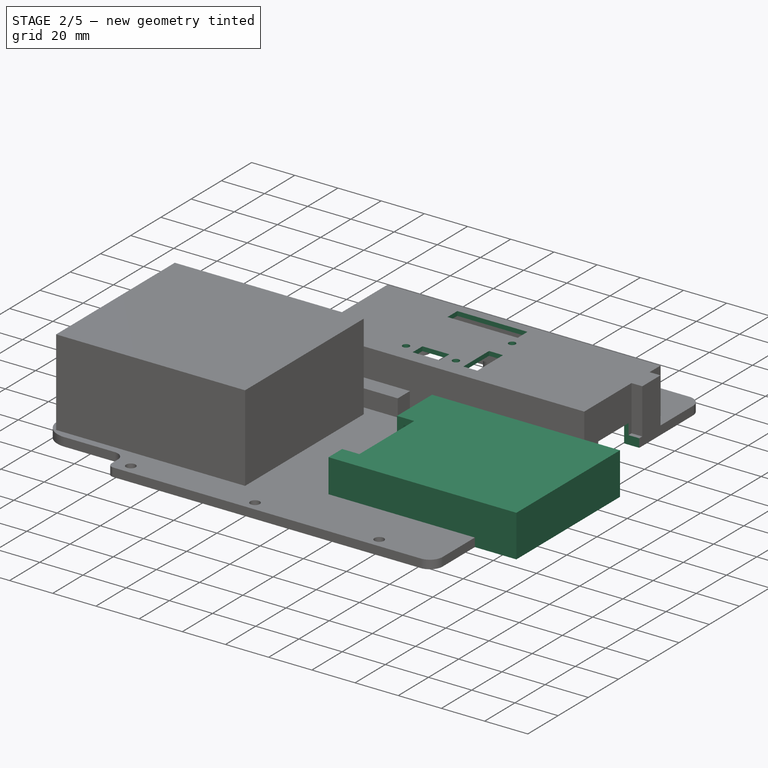
[diagram: stage 2 of 5 — iso view after this stage's code; geometry added in this stage tinted green]
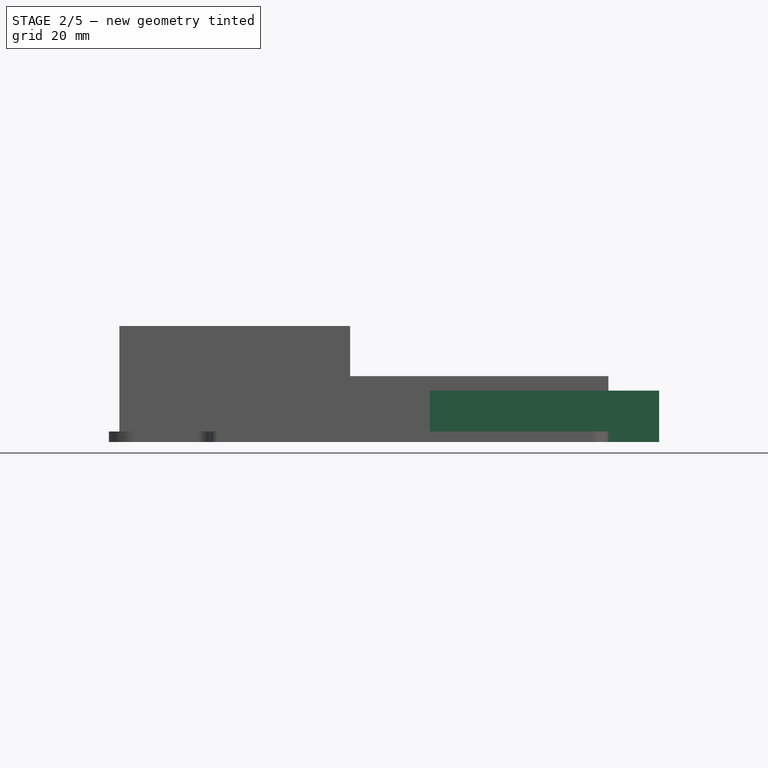
[diagram: stage 2 of 5 — front view after this stage's code; geometry added in this stage tinted green]
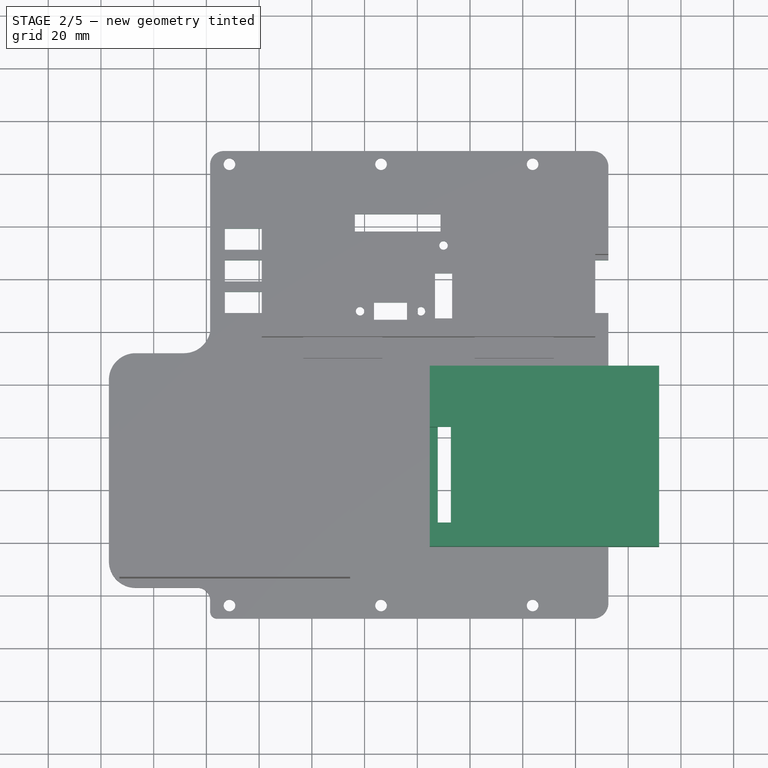
[diagram: stage 2 of 5 — top view after this stage's code; geometry added in this stage tinted green]
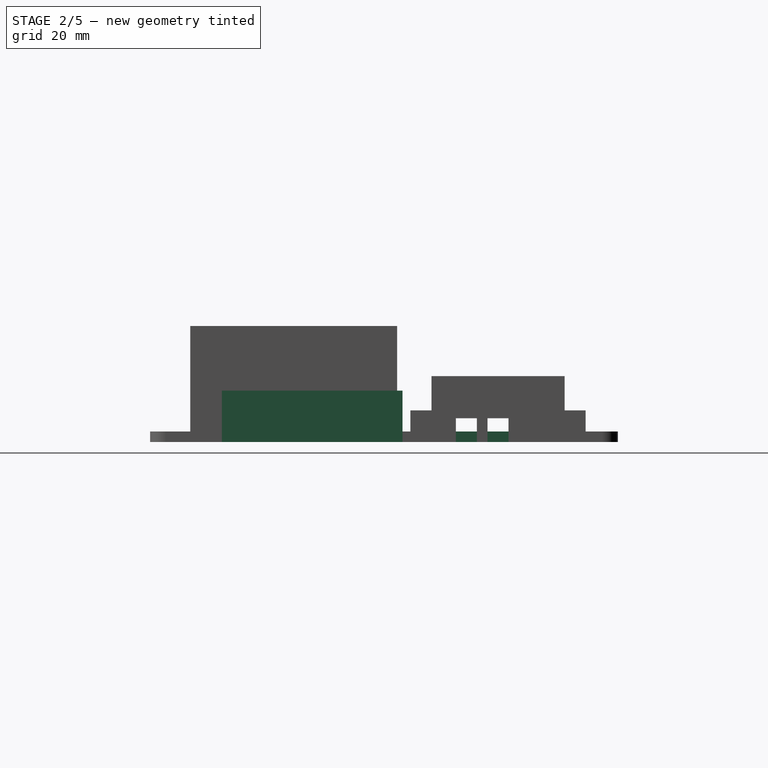
[diagram: stage 2 of 5 — right view after this stage's code; geometry added in this stage tinted green]
FEATURE [PartDesign::Pad] Pad005  label="bmsWallPad"
  BaseFeature = -> Pad004
  Direction = (1,1,1)
  Length = 19.5
  Length2 = 100
  Profile = -> Sketch008
  Type = 0
  expr: Length = Spreadsheet.bmsHeight + Spreadsheet.bmsWallThickness
FEATURE [PartDesign::Pocket] Pocket003  label="bmsPrimaryOutlineAndPositionPocket"
  BaseFeature = -> Pad005
  Length = 16.5
  Length2 = 100
  Profile = -> Sketch004
  Reversed = true
  Type = 0
  expr: Length = Spreadsheet.bmsHeight
FEATURE [PartDesign::Pocket] Pocket004  label="balanceLeadsExitPocket"
  BaseFeature = -> Pocket003
  Length = 5
  Length2 = 100
  Profile = -> Sketch011
  Reversed = true
  Type = 1
  expr: Length = Spreadsheet.bmsBalanceLeadsThickness
FEATURE [PartDesign::Plane] DatumPlane004  label="cableClearenceHeightPlane"
  AttachmentOffset = pos=(0,0,4.5) rot=(0,0,1;0rad)
  Length = 255.959
  MapMode = 5
  Placement = pos=(0,0,4.5) rot=(0,0,1;0rad)
  ResizeMode = 0
  Support = -> [XY_Plane]
  Width = 216.617
  expr: .AttachmentOffset.Base.z = Spreadsheet.escCableClearenceHeight
FEATURE [Sketcher::SketchObject] Sketch012  label="escCableClearence"
  ExternalGeometry = -> [Sketch002]
  FullyConstrained = false
  MapMode = 5
  Placement = pos=(0,0,4.5) rot=(0,0,1;0rad)
  Support = -> [DatumPlane004]
  expr: Constraints[22] = Spreadsheet.escCableDiameter
  expr: Constraints[25] = Spreadsheet.escCableClearenceLength * 2
  expr: Constraints[23] = Spreadsheet.escCableDiameter
  expr: Constraints[34] = Spreadsheet.escCableSeparation - Spreadsheet.escCableDiameter / 2
  expr: Constraints[24] = Spreadsheet.escCableDiameter
  expr: Constraints[56] = Spreadsheet.escCableClearenceLength + Spreadsheet.escEncoderCableClearenceLength
  expr: Constraints[55] = Spreadsheet.escCableClearenceLength + Spreadsheet.escXt90ClearenceLength
  expr: Constraints[26] = Spreadsheet.escCableClearenceLength * 2
  sketch-geometry (23):
    g0: LineSegment StartX=0 StartY=43.25 StartZ=0 EndX=56.602 EndY=43.25 EndZ=0
    g1: LineSegment StartX=27 StartY=47.25 StartZ=0 EndX=59 EndY=47.25 EndZ=0
    g2: LineSegment StartX=59 StartY=47.25 StartZ=0 EndX=59 EndY=39.25 EndZ=0
    g3: LineSegment StartX=59 StartY=39.25 StartZ=0 EndX=27 EndY=39.25 EndZ=0
    g4: LineSegment StartX=27 StartY=39.25 StartZ=0 EndX=27 EndY=47.25 EndZ=0
    g5: LineSegment StartX=27 StartY=59.25 StartZ=0 EndX=59 EndY=59.25 EndZ=0
    g6: LineSegment StartX=59 StartY=59.25 StartZ=0 EndX=59 EndY=51.25 EndZ=0
    g7: LineSegment StartX=59 StartY=51.25 StartZ=0 EndX=27 EndY=51.25 EndZ=0
    g8: LineSegment StartX=27 StartY=51.25 StartZ=0 EndX=27 EndY=59.25 EndZ=0
    g9: LineSegment StartX=27 StartY=35.25 StartZ=0 EndX=59 EndY=35.25 EndZ=0
    g10: LineSegment StartX=59 StartY=35.25 StartZ=0 EndX=59 EndY=27.25 EndZ=0
    g11: LineSegment StartX=59 StartY=27.25 StartZ=0 EndX=27 EndY=27.25 EndZ=0
    g12: LineSegment StartX=27 StartY=27.25 StartZ=0 EndX=27 EndY=35.25 EndZ=0
    g13: LineSegment StartX=43 StartY=-1745.81 StartZ=0 EndX=43 EndY=1832.31 EndZ=0
    g14: LineSegment StartX=104.25 StartY=137.252 StartZ=0 EndX=104.25 EndY=-50.752 EndZ=0
    g15: LineSegment StartX=149.5 StartY=59.25 StartZ=0 EndX=170.5 EndY=59.25 EndZ=0
    g16: LineSegment StartX=170.5 StartY=59.25 StartZ=0 EndX=170.5 EndY=51.25 EndZ=0
    g17: LineSegment StartX=170.5 StartY=51.25 StartZ=0 EndX=149.5 EndY=51.25 EndZ=0
    g18: LineSegment StartX=149.5 StartY=51.25 StartZ=0 EndX=149.5 EndY=59.25 EndZ=0
    g19: LineSegment StartX=149.5 StartY=47.25 StartZ=0 EndX=191.5 EndY=47.25 EndZ=0
    g20: LineSegment StartX=191.5 StartY=47.25 StartZ=0 EndX=191.5 EndY=27.25 EndZ=0
    g21: LineSegment StartX=191.5 StartY=27.25 StartZ=0 EndX=149.5 EndY=27.25 EndZ=0
    g22: LineSegment StartX=149.5 StartY=27.25 StartZ=0 EndX=149.5 EndY=47.25 EndZ=0
  constraints (57):
    c: Symmetric(g-4,g-4,g0)
    c: PointOnObject(g0,g-2)
    c: Coincident(g1,g2)
    c: Coincident(g2,g3)
    c: Coincident(g3,g4)
    c: Coincident(g4,g1)
    c: Horizontal(g3)
    c: Vertical(g2)
    c: Coincident(g5,g6)
    c: Coincident(g6,g7)
    c: Coincident(g7,g8)
    c: Coincident(g8,g5)
    c: Horizontal(g7)
    c: Vertical(g6)
    c: Vertical(g8)
    c: Coincident(g9,g10)
    c: Coincident(g10,g11)
    c: Coincident(g11,g12)
    c: Coincident(g12,g9)
    c: Horizontal(g11)
    c: Vertical(g10)
    c: Vertical(g12)
    c: Distance(g6) = 8
    c: Distance(g2) = 8
    c: Distance(g10) = 8
    c: Distance(g5) = 32
    c: Distance(g1) = 32
    c: PointOnObject(g13,g-4)
    c: Symmetric(g13,g13,g0)
    c: Symmetric(g5,g5,g13)
    c: Symmetric(g1,g1,g13)
    c: Symmetric(g9,g9,g13)
    c: Symmetric(g6,g9,g0)
    c: Symmetric(g1,g3,g0)
    c: DistanceY(g9,g0) = 8
    c: Symmetric(g-6,g-4,g14)
    c: Symmetric(g14,g14,g0)
    c: Coincident(g15,g16)
    c: Coincident(g16,g17)
    c: Coincident(g17,g18)
    c: Coincident(g18,g15)
    c: Horizontal(g15)
    c: Horizontal(g17)
    c: Vertical(g16)
    c: Coincident(g19,g20)
    c: Coincident(g20,g21)
    c: Coincident(g21,g22)
    c: Coincident(g22,g19)
    c: Horizontal(g19)
    c: Horizontal(g21)
    c: Vertical(g20)
    c: Symmetric(g17,g6,g14)
    c: Symmetric(g19,g1,g14)
    c: Symmetric(g15,g5,g14)
    c: Symmetric(g21,g10,g14)
    c: Distance(g21) = 42
    c: Distance(g17) = 21
FEATURE [PartDesign::Pocket] Pocket005  label="escCableClearencePocket"
  BaseFeature = -> Pocket004
  Length = 9
  Length2 = 100
  Midplane = true
  Profile = -> Sketch012
  Reversed = true
  Type = 0
  expr: Length = Spreadsheet.escCableClearenceHeight * 2
FEATURE [Sketcher::SketchObject] Sketch013  label="escNutClearence"
  ExternalGeometry = -> [Sketch002]
  FullyConstrained = false
  MapMode = 5
  Support = -> [XY_Plane]
  expr: Constraints[2] = Spreadsheet.escNutClearanceRadius
  expr: Constraints[3] = Spreadsheet.escNutClearanceRadius
  expr: Constraints[10] = Spreadsheet.escMountHoleSeparationWidth
  expr: Constraints[4] = Spreadsheet.escNutClearanceRadius
  expr: Constraints[5] = Spreadsheet.escNutClearanceRadius
  expr: Constraints[9] = Spreadsheet.escMountHoleSeparationLength
  sketch-geometry (6):
    g0: Circle CenterX=71.5 CenterY=69.5 CenterZ=0 NormalX=0 NormalY=0 NormalZ=1 AngleXU=0 Radius=4
    g1: Circle CenterX=137 CenterY=69.5 CenterZ=0 NormalX=0 NormalY=0 NormalZ=1 AngleXU=0 Radius=4
    g2: Circle CenterX=71.5 CenterY=17 CenterZ=0 NormalX=0 NormalY=0 NormalZ=1 AngleXU=0 Radius=4
    g3: Circle CenterX=137 CenterY=17 CenterZ=0 NormalX=0 NormalY=0 NormalZ=1 AngleXU=0 Radius=4
    g4: LineSegment StartX=13.3292 StartY=43.25 StartZ=0 EndX=177.282 EndY=43.25 EndZ=0
    g5: LineSegment StartX=104.25 StartY=93.9896 StartZ=0 EndX=104.25 EndY=6.97683 EndZ=0
  constraints (11):
    c: Symmetric(g-10,g-11,g4)
    c: Symmetric(g-10,g-10,g5)
    c: Radius(g0) = 4
    c: Radius(g1) = 4
    c: Radius(g2) = 4
    c: Radius(g3) = 4
    c: Symmetric(g1,g0,g5)
    c: Symmetric(g3,g2,g5)
    c: Symmetric(g0,g2,g4)
    c: DistanceX(g2,g3) = 65.5
    c: DistanceY(g2,g0) = 52.5
FEATURE [PartDesign::Pocket] Pocket006  label="escNutClearencePocket"
  BaseFeature = -> Pocket005
  Length = 10
  Length2 = 100
  Profile = -> Sketch013
  Reversed = true
  Type = 0
  expr: Length = Spreadsheet.escNutClearanceDepth + Spreadsheet.escBaseThickness
FEATURE [TechDraw::DrawSVGTemplate] Template
  EditableTexts = Designed_by_Name=Justin Wylie; Drawing_number=Drawing number; FC-Date=June 2023; FC-SC=1:1; FC-SH=Sheet; FC-Title=ESC Base Outline; Subtitle=Subtitle; Weight=Weight
  Height = 210
  Orientation = 1
  Width = 297
FEATURE [TechDraw::DrawViewPart] View
  CoarseView = false
  Direction = (0,0,1)
  Focus = 100
  HardHidden = false
  IsoCount = 0
  IsoHidden = false
  IsoVisible = false
  LockPosition = false
  Perspective = false
  Rotation = 90
  ScaleType = 0
  SeamHidden = false
  SeamVisible = true
  SmoothHidden = false
  SmoothVisible = true
  Source = -> [Sketch002]
  X = 149.361
  XDirection = (0,-1,0)
  Y = 130.246
FEATURE [TechDraw::DrawViewDimension] Dimension
  Arbitrary = false
  ArbitraryTolerances = false
  EqualTolerance = true
  FormatSpec = %.2f
  FormatSpecOverTolerance = %+.2f
  FormatSpecUnderTolerance = %+.2f
  Inverted = false
  LockPosition = false
  MeasureType = 1
  OverTolerance = 0
  References2D = -> [View]
  Rotation = 0
  ScaleType = 0
  TheoreticalExact = false
  Type = 1
  UnderTolerance = 0
  X = -0.229114
  Y = 49.9323
FEATURE [TechDraw::DrawViewDimension] Dimension001
  Arbitrary = false
  ArbitraryTolerances = false
  EqualTolerance = true
  FormatSpec = %.2f
  FormatSpecOverTolerance = %+.2f
  FormatSpecUnderTolerance = %+.2f
  Inverted = false
  LockPosition = false
  MeasureType = 1
  OverTolerance = 0
  References2D = -> [View]
  Rotation = 0
  ScaleType = 0
  TheoreticalExact = false
  Type = 1
  UnderTolerance = 0
  X = 0.687341
  Y = 41.6842
FEATURE [TechDraw::DrawPage] Page  label="escBaseDrawing"
  KeepUpdated = true
  NextBalloonIndex = 1
  ProjectionType = 0
  Template = -> Template
  Views = -> [View,Dimension,Dimension001]
FEATURE [Sketcher::SketchObject] Sketch014  label="escPortAccess"
  ExternalGeometry = -> [Sketch001]
  FullyConstrained = true
  MapMode = 5
  Support = -> [XY_Plane]
  expr: Constraints[35] = Spreadsheet.m3BoltRadius
  expr: Constraints[34] = Spreadsheet.m3BoltRadius
  expr: Constraints[33] = Spreadsheet.m3BoltRadius
  sketch-geometry (15):
    g0: LineSegment StartX=76.3 StartY=64.3 StartZ=0 EndX=108.8 EndY=64.3 EndZ=0
    g1: LineSegment StartX=108.8 StartY=64.3 StartZ=0 EndX=108.8 EndY=57.8 EndZ=0
    g2: LineSegment StartX=108.8 StartY=57.8 StartZ=0 EndX=76.3 EndY=57.8 EndZ=0
    g3: LineSegment StartX=76.3 StartY=57.8 StartZ=0 EndX=76.3 EndY=64.3 EndZ=0
    g4: LineSegment StartX=106.7 StartY=41.85 StartZ=0 EndX=113.2 EndY=41.85 EndZ=0
    g5: LineSegment StartX=113.2 StartY=41.85 StartZ=0 EndX=113.2 EndY=24.85 EndZ=0
    g6: LineSegment StartX=113.2 StartY=24.85 StartZ=0 EndX=106.7 EndY=24.85 EndZ=0
    g7: LineSegment StartX=106.7 StartY=24.85 StartZ=0 EndX=106.7 EndY=41.85 EndZ=0
    g8: LineSegment StartX=83.6 StartY=30.8 StartZ=0 EndX=96.1 EndY=30.8 EndZ=0
    g9: LineSegment StartX=96.1 StartY=30.8 StartZ=0 EndX=96.1 EndY=24.3 EndZ=0
    g10: LineSegment StartX=96.1 StartY=24.3 StartZ=0 EndX=83.6 EndY=24.3 EndZ=0
    g11: LineSegment StartX=83.6 StartY=24.3 StartZ=0 EndX=83.6 EndY=30.8 EndZ=0
    g12: Circle CenterX=109.95 CenterY=52.5 CenterZ=0 NormalX=0 NormalY=0 NormalZ=1 AngleXU=0 Radius=1.6
    g13: Circle CenterX=101.4 CenterY=27.55 CenterZ=0 NormalX=0 NormalY=0 NormalZ=1 AngleXU=0 Radius=1.6
    g14: Circle CenterX=78.3 CenterY=27.55 CenterZ=0 NormalX=0 NormalY=0 NormalZ=1 AngleXU=0 Radius=1.6
  constraints (36):
    c: Coincident(g0,g1)
    c: Coincident(g1,g2)
    c: Coincident(g2,g3)
    c: Coincident(g3,g0)
    c: Horizontal(g0)
    c: Horizontal(g2)
    c: Vertical(g1)
    c: Vertical(g3)
    c: Coincident(g0,g-7)
    c: Coincident(g1,g-6)
    c: Coincident(g4,g5)
    c: Coincident(g5,g6)
    c: Coincident(g6,g7)
    c: Coincident(g7,g4)
    c: Horizontal(g4)
    c: Horizontal(g6)
    c: Vertical(g5)
    c: Vertical(g7)
    c: Coincident(g4,g-11)
    c: Coincident(g5,g-10)
    c: Coincident(g8,g9)
    c: Coincident(g9,g10)
    c: Coincident(g10,g11)
    c: Coincident(g11,g8)
    c: Horizontal(g8)
    c: Horizontal(g10)
    c: Vertical(g9)
    c: Vertical(g11)
    c: Coincident(g8,g-8)
    c: Coincident(g9,g-9)
    c: Coincident(g12,g-5)
    c: Coincident(g13,g-3)
    c: Coincident(g14,g-4)
    c: Radius(g14) = 1.6
    c: Radius(g12) = 1.6
    c: Radius(g13) = 1.6
FEATURE [PartDesign::Pocket] Pocket007  label="escPortAccessPocket"
  BaseFeature = -> Pocket006
  Length = 5
  Length2 = 100
  Profile = -> Sketch014
  Reversed = true
  Type = 1
FEATURE [PartDesign::Plane] DatumPlane005  label="topOfEscModule"
  AttachmentOffset = pos=(0,0,23) rot=(0,0,1;0rad)
  Length = 255.959
  MapMode = 5
  Placement = pos=(0,0,23) rot=(0,0,1;0rad)
  ResizeMode = 0
  Support = -> [XY_Plane]
  Width = 216.617
  expr: .AttachmentOffset.Base.z = Spreadsheet.escThickness
FEATURE [Sketcher::SketchObject] Sketch015  label="escPortAccessNutSupport"
  ExternalGeometry = -> [Sketch001]
  FullyConstrained = true
  MapMode = 5
  Placement = pos=(0,0,23) rot=(0,0,1;0rad)
  Support = -> [DatumPlane005]
  expr: Constraints[65] = Spreadsheet.m3NutAcrossFlatSides
  expr: Constraints[64] = Spreadsheet.m3NutAcrossFlatSides
  expr: Constraints[63] = Spreadsheet.m3NutAcrossFlatSides
  expr: Constraints[5] = Spreadsheet.portsCoverMountingNutAreaDiameter / 2
  expr: Constraints[4] = Spreadsheet.portsCoverMountingNutAreaDiameter / 2
  expr: Constraints[3] = Spreadsheet.portsCoverMountingNutAreaDiameter / 2
  sketch-geometry (24):
    g0: Circle CenterX=109.95 CenterY=52.5 CenterZ=0 NormalX=0 NormalY=0 NormalZ=1 AngleXU=0 Radius=4.75
    g1: Circle CenterX=101.4 CenterY=27.55 CenterZ=0 NormalX=0 NormalY=0 NormalZ=1 AngleXU=0 Radius=4.75
    g2: Circle CenterX=78.3 CenterY=27.55 CenterZ=0 NormalX=0 NormalY=0 NormalZ=1 AngleXU=0 Radius=4.75
    g3: LineSegment StartX=111.538 StartY=49.75 StartZ=0 EndX=113.125 EndY=52.5 EndZ=0
    g4: LineSegment StartX=113.125 StartY=52.5 StartZ=0 EndX=111.538 EndY=55.25 EndZ=0
    g5: LineSegment StartX=111.538 StartY=55.25 StartZ=0 EndX=108.362 EndY=55.25 EndZ=0
    g6: LineSegment StartX=108.362 StartY=55.25 StartZ=0 EndX=106.775 EndY=52.5 EndZ=0
    g7: LineSegment StartX=106.775 StartY=52.5 StartZ=0 EndX=108.362 EndY=49.75 EndZ=0
    g8: LineSegment StartX=108.362 StartY=49.75 StartZ=0 EndX=111.538 EndY=49.75 EndZ=0
    g9: Circle CenterX=109.95 CenterY=52.5 CenterZ=0 NormalX=0 NormalY=0 NormalZ=1 AngleXU=0 Radius=3.17543
    g10: LineSegment StartX=104.15 StartY=25.9623 StartZ=0 EndX=104.15 EndY=29.1377 EndZ=0
    g11: LineSegment StartX=104.15 StartY=29.1377 StartZ=0 EndX=101.4 EndY=30.7254 EndZ=0
    g12: LineSegment StartX=101.4 StartY=30.7254 StartZ=0 EndX=98.65 EndY=29.1377 EndZ=0
    g13: LineSegment StartX=98.65 StartY=29.1377 StartZ=0 EndX=98.65 EndY=25.9623 EndZ=0
    g14: LineSegment StartX=98.65 StartY=25.9623 StartZ=0 EndX=101.4 EndY=24.3746 EndZ=0
    g15: LineSegment StartX=101.4 StartY=24.3746 StartZ=0 EndX=104.15 EndY=25.9623 EndZ=0
    g16: Circle CenterX=101.4 CenterY=27.55 CenterZ=0 NormalX=0 NormalY=0 NormalZ=1 AngleXU=0 Radius=3.17543
    g17: LineSegment StartX=81.05 StartY=25.9623 StartZ=0 EndX=81.05 EndY=29.1377 EndZ=0
    g18: LineSegment StartX=81.05 StartY=29.1377 StartZ=0 EndX=78.3 EndY=30.7254 EndZ=0
    g19: LineSegment StartX=78.3 StartY=30.7254 StartZ=0 EndX=75.55 EndY=29.1377 EndZ=0
    g20: LineSegment StartX=75.55 StartY=29.1377 StartZ=0 EndX=75.55 EndY=25.9623 EndZ=0
    g21: LineSegment StartX=75.55 StartY=25.9623 StartZ=0 EndX=78.3 EndY=24.3746 EndZ=0
    g22: LineSegment StartX=78.3 StartY=24.3746 StartZ=0 EndX=81.05 EndY=25.9623 EndZ=0
    g23: Circle CenterX=78.3 CenterY=27.55 CenterZ=0 NormalX=0 NormalY=0 NormalZ=1 AngleXU=0 Radius=3.17543
  constraints (54):
    c: Coincident(g0,g-5)
    c: Coincident(g1,g-4)
    c: Coincident(g-3,g2)
    c: Radius(g0) = 4.75
    c: Radius(g1) = 4.75
    c: Radius(g2) = 4.75
    c: Coincident(g3,g4)
    c: Coincident(g4,g5)
    c: Coincident(g5,g6)
    c: Coincident(g6,g7)
    c: Coincident(g7,g8)
    c: Coincident(g8,g3)
    c: Equal(g3, g4-g8) x5
    c: PointOnObject(g3,g9)
    c: PointOnObject(g4,g9)
    c: PointOnObject(g5,g9)
    c: PointOnObject(g6,g9)
    c: PointOnObject(g7,g9)
    c: PointOnObject(g8,g9)
    c: Coincident(g9,g0)
    c: Coincident(g10,g11)
    c: Coincident(g11,g12)
    c: Coincident(g12,g13)
    c: Coincident(g13,g14)
    c: Coincident(g14,g15)
    c: Coincident(g15,g10)
    c: Equal(g10, g11-g15) x5
    c: PointOnObject(g10,g16)
    c: PointOnObject(g11,g16)
    c: PointOnObject(g12,g16)
    c: PointOnObject(g13,g16)
    c: PointOnObject(g14,g16)
    c: PointOnObject(g15,g16)
    c: Coincident(g16,g1)
    c: Coincident(g17,g18)
    c: Coincident(g18,g19)
    c: Coincident(g19,g20)
    c: Coincident(g20,g21)
    c: Coincident(g21,g22)
    c: Coincident(g22,g17)
    c: Equal(g17, g18-g22) x5
    c: PointOnObject(g17,g23)
    c: PointOnObject(g18,g23)
    c: PointOnObject(g19,g23)
    c: PointOnObject(g20,g23)
    c: PointOnObject(g21,g23)
    c: PointOnObject(g22,g23)
    c: Coincident(g23,g2)
    c: Horizontal(g8)
    c: Vertical(g10)
    c: Vertical(g17)
    c: DistanceX(g20,g17) = 5.5
    c: DistanceX(g13,g10) = 5.5
    c: DistanceY(g3,g4) = 5.5
FEATURE [PartDesign::Pad] Pad008  label="escPortAccessNutSupportPad"
  BaseFeature = -> Pocket007
  Direction = (1,1,1)
  Length = 3
  Length2 = 100
  Profile = -> Sketch015
  Reversed = true
  Type = 0
  expr: Length = Spreadsheet.portsCoverMountingNutSupportDepth
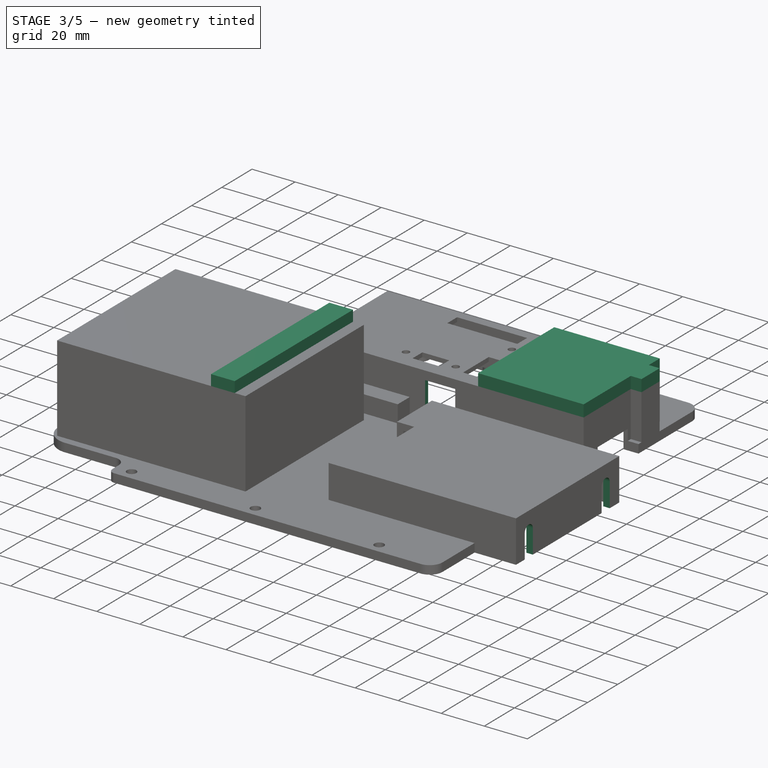
[diagram: stage 3 of 5 — iso view after this stage's code; geometry added in this stage tinted green]
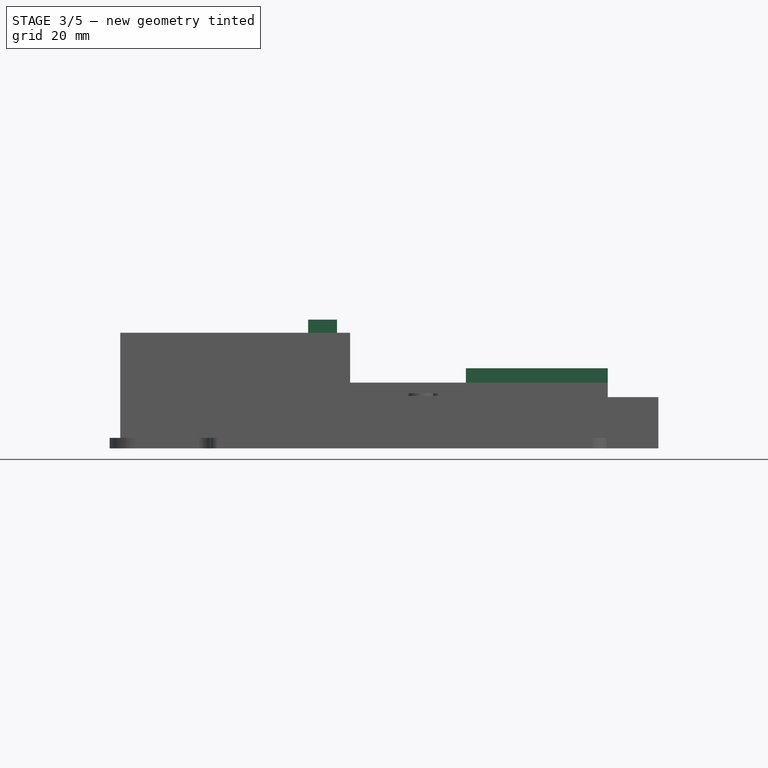
[diagram: stage 3 of 5 — front view after this stage's code; geometry added in this stage tinted green]
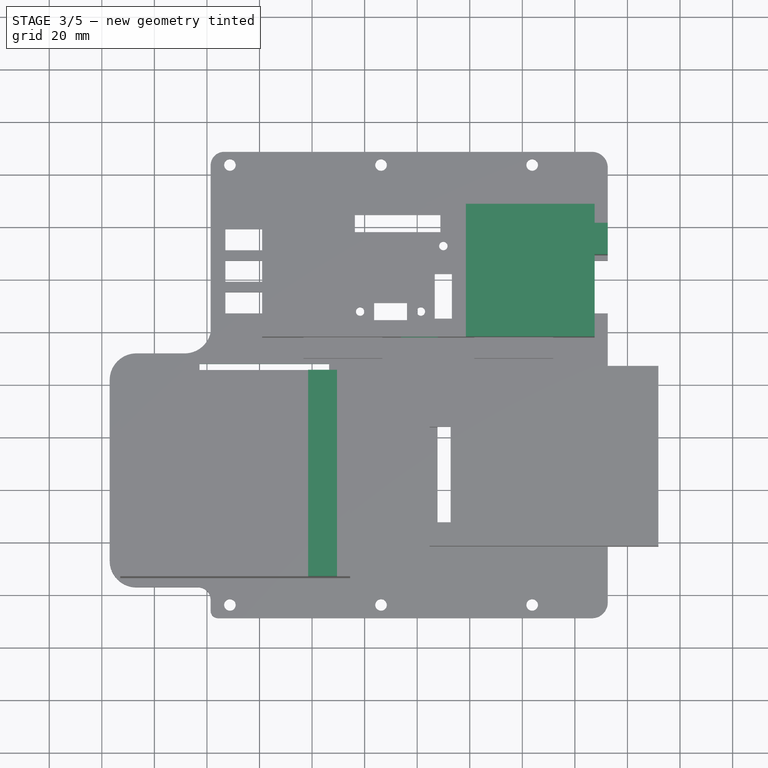
[diagram: stage 3 of 5 — top view after this stage's code; geometry added in this stage tinted green]
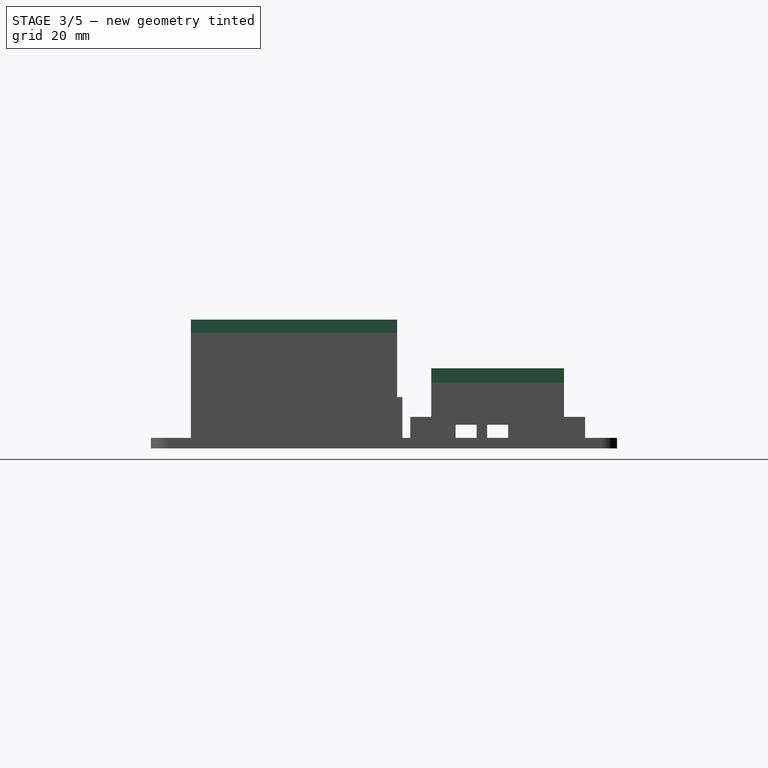
[diagram: stage 3 of 5 — right view after this stage's code; geometry added in this stage tinted green]
FEATURE [Sketcher::SketchObject] Sketch016  label="receiverCableStow"
  ExternalGeometry = -> [Sketch003]
  FullyConstrained = true
  MapMode = 5
  Placement = pos=(0,0,23) rot=(0,0,1;0rad)
  Support = -> [DatumPlane005]
  expr: Constraints[19] = Spreadsheet.receiverCableStoreLength
  sketch-geometry (8):
    g0: LineSegment StartX=165.5 StartY=59.25 StartZ=0 EndX=165.5 EndY=66.5 EndZ=0
    g1: LineSegment StartX=165.5 StartY=66.5 StartZ=0 EndX=120.5 EndY=66.5 EndZ=0
    g2: LineSegment StartX=120.5 StartY=66.5 StartZ=0 EndX=120.5 EndY=20 EndZ=0
    g3: LineSegment StartX=120.5 StartY=20 StartZ=0 EndX=165.5 EndY=20 EndZ=0
    g4: LineSegment StartX=165.5 StartY=20 StartZ=0 EndX=165.5 EndY=51.25 EndZ=0
    g5: LineSegment StartX=165.5 StartY=51.25 StartZ=0 EndX=170.5 EndY=51.25 EndZ=0
    g6: LineSegment StartX=170.5 StartY=51.25 StartZ=0 EndX=170.5 EndY=59.25 EndZ=0
    g7: LineSegment StartX=170.5 StartY=59.25 StartZ=0 EndX=165.5 EndY=59.25 EndZ=0
  constraints (20):
    c: Coincident(g0,g-5)
    c: Coincident(g1,g0)
    c: Horizontal(g1)
    c: Coincident(g2,g1)
    c: Vertical(g2)
    c: Coincident(g3,g2)
    c: Horizontal(g3)
    c: Coincident(g4,g3)
    c: Coincident(g4,g-3)
    c: Vertical(g4)
    c: Coincident(g5,g4)
    c: Coincident(g5,g-4)
    c: Coincident(g6,g5)
    c: Coincident(g6,g-5)
    c: Coincident(g7,g6)
    c: Coincident(g7,g0)
    c: Vertical(g0)
    c: PointOnObject(g1,g-6)
    c: PointOnObject(g2,g-7)
    c: Distance(g1) = 45
FEATURE [Sketcher::SketchObject] Sketch017  label="receiverCableStowWall"
  ExternalGeometry = -> [Sketch016]
  FullyConstrained = true
  MapMode = 5
  Placement = pos=(0,0,23) rot=(0,0,1;0rad)
  Support = -> [DatumPlane005]
  expr: Constraints[23] = Spreadsheet.escWallThickness
  expr: Constraints[22] = Spreadsheet.escWallThickness
  expr: Constraints[21] = Spreadsheet.escWallThickness
  expr: Constraints[20] = Spreadsheet.escWallThickness
  expr: Constraints[19] = Spreadsheet.escWallThickness
  expr: Constraints[17] = Spreadsheet.escWallThickness
  expr: Constraints[18] = Spreadsheet.escWallThickness
  expr: Constraints[16] = Spreadsheet.escWallThickness
  sketch-geometry (8):
    g0: LineSegment StartX=118.5 StartY=68.5 StartZ=0 EndX=167.5 EndY=68.5 EndZ=0
    g1: LineSegment StartX=167.5 StartY=68.5 StartZ=0 EndX=167.5 EndY=61.25 EndZ=0
    g2: LineSegment StartX=167.5 StartY=61.25 StartZ=0 EndX=172.5 EndY=61.25 EndZ=0
    g3: LineSegment StartX=172.5 StartY=61.25 StartZ=0 EndX=172.5 EndY=49.25 EndZ=0
    g4: LineSegment StartX=172.5 StartY=49.25 StartZ=0 EndX=167.5 EndY=49.25 EndZ=0
    g5: LineSegment StartX=167.5 StartY=49.25 StartZ=0 EndX=167.5 EndY=18 EndZ=0
    g6: LineSegment StartX=167.5 StartY=18 StartZ=0 EndX=118.5 EndY=18 EndZ=0
    g7: LineSegment StartX=118.5 StartY=18 StartZ=0 EndX=118.5 EndY=68.5 EndZ=0
  constraints (24):
    c: Horizontal(g0)
    c: Coincident(g1,g0)
    c: Coincident(g2,g1)
    c: Horizontal(g2)
    c: Coincident(g3,g2)
    c: Vertical(g3)
    c: Coincident(g4,g3)
    c: Coincident(g5,g4)
    c: Vertical(g5)
    c: Coincident(g6,g5)
    c: Horizontal(g6)
    c: Coincident(g7,g6)
    c: Coincident(g7,g0)
    c: Vertical(g7)
    c: Vertical(g1)
    c: Horizontal(g4)
    c: DistanceX(g-3,g2) = 2
    c: DistanceX(g-4,g4) = 2
    c: DistanceX(g6,g-6) = 2
    c: DistanceY(g-6,g0) = 2
    c: DistanceY(g6,g-6) = 2
    c: DistanceY(g4,g-4) = 2
    c: DistanceY(g-5,g1) = 2
    c: DistanceX(g-5,g0) = 2
FEATURE [PartDesign::Pad] Pad009  label="receiverCableStowWallPad"
  BaseFeature = -> Pad008
  Direction = (1,1,1)
  Length = 7.5
  Length2 = 100
  Profile = -> Sketch017
  Type = 0
  expr: Length = Spreadsheet.receiverCableStoreHeight + Spreadsheet.escWallThickness
FEATURE [PartDesign::Pocket] Pocket008  label="receiverCableStowPocket"
  BaseFeature = -> Pad009
  Length = 5.5
  Length2 = 100
  Profile = -> Sketch016
  Reversed = true
  Type = 0
  expr: Length = Spreadsheet.receiverCableStoreHeight
FEATURE [PartDesign::Plane] DatumPlane006  label="sideOfEscWall"
  AttachmentOffset = pos=(0,0,-20) rot=(0,0,1;0rad)
  Length = 242.071
  MapMode = 5
  Placement = pos=(0,20,4.4e-15) rot=(1,0,0;1.5708rad)
  ResizeMode = 0
  Support = -> [XZ_Plane]
  Width = 99.329
  expr: .AttachmentOffset.Base.z = -20mm
FEATURE [Sketcher::SketchObject] Sketch018  label="escUsbPortAccess"
  ExternalGeometry = -> [Sketch002]
  FullyConstrained = false
  MapMode = 5
  Placement = pos=(0,20,4.4e-15) rot=(1,0,0;1.5708rad)
  Support = -> [DatumPlane006]
  expr: Constraints[13] = Spreadsheet.usbPortOffCentreAlongHorizontal
  expr: Constraints[10] = Spreadsheet.usbPortOffFromXYPlane
  expr: Constraints[9] = Spreadsheet.usbPortSideLength
  expr: Constraints[8] = Spreadsheet.usbPortSideLength
  sketch-geometry (6):
    g0: LineSegment StartX=107.85 StartY=21 StartZ=0 EndX=93.85 EndY=21 EndZ=0
    g1: LineSegment StartX=93.85 StartY=21 StartZ=0 EndX=93.85 EndY=7 EndZ=0
    g2: LineSegment StartX=93.85 StartY=7 StartZ=0 EndX=107.85 EndY=7 EndZ=0
    g3: LineSegment StartX=107.85 StartY=7 StartZ=0 EndX=107.85 EndY=21 EndZ=0
    g4: LineSegment StartX=104.25 StartY=40.5073 StartZ=0 EndX=104.25 EndY=-14.7273 EndZ=0
    g5: LineSegment StartX=100.85 StartY=26.3927 StartZ=0 EndX=100.85 EndY=2.66624 EndZ=0
  constraints (14):
    c: Coincident(g0,g1)
    c: Coincident(g1,g2)
    c: Coincident(g2,g3)
    c: Coincident(g3,g0)
    c: Horizontal(g0)
    c: Horizontal(g2)
    c: Vertical(g1)
    c: Vertical(g3)
    c: Distance(g0) = 14
    c: Distance(g1) = 14
    c: DistanceY(g-1,g2) = 7
    c: Symmetric(g-3,g-4,g4)
    c: Symmetric(g0,g0,g5)
    c: DistanceX(g5,g4) = 3.4
FEATURE [PartDesign::Pocket] Pocket009  label="escUsbPortAccessPocket"
  BaseFeature = -> Pocket008
  Length = 5
  Length2 = 100
  Midplane = true
  Profile = -> Sketch018
  Type = 0
FEATURE [Sketcher::SketchObject] Sketch019  label="batteryTerminalOpening"
  ExternalGeometry = -> [Sketch005]
  FullyConstrained = true
  MapMode = 5
  Support = -> [XY_Plane]
  expr: Constraints[8] = Spreadsheet.batteryLength * 2 / 3 - Spreadsheet.spacerOverlap
  expr: Constraints[9] = Spreadsheet.batteryWallThickness * 2
  expr: Constraints[10] = Spreadsheet.spacerOverlap
  sketch-geometry (4):
    g0: LineSegment StartX=66.5 StartY=2 StartZ=0 EndX=17.1667 EndY=2 EndZ=0
    g1: LineSegment StartX=17.1667 StartY=2 StartZ=0 EndX=17.1667 EndY=8 EndZ=0
    g2: LineSegment StartX=17.1667 StartY=8 StartZ=0 EndX=66.5 EndY=8 EndZ=0
    g3: LineSegment StartX=66.5 StartY=8 StartZ=0 EndX=66.5 EndY=2 EndZ=0
  constraints (12):
    c: Coincident(g0,g1)
    c: Coincident(g1,g2)
    c: Coincident(g2,g3)
    c: Coincident(g3,g0)
    c: Horizontal(g0)
    c: Horizontal(g2)
    c: Vertical(g1)
    c: Vertical(g3)
    c: Distance(g2) = 49.3333
    c: Distance(g3) = 6
    c: DistanceX(g0,g-3) = 5
    c: PointOnObject(g0,g-3)
FEATURE [PartDesign::Pocket] Pocket010  label="batteryTerminalOpeningPocket"
  BaseFeature = -> Pocket009
  Length = 36
  Length2 = 100
  Profile = -> Sketch019
  Reversed = true
  Type = 0
  expr: Length = Spreadsheet.batteryHeight - Spreadsheet.spacerOverlap
FEATURE [Sketcher::SketchObject] Sketch020  label="batteryVerticalSupport"
  ExternalGeometry = -> [Sketch006]
  FullyConstrained = true
  MapMode = 5
  Placement = pos=(0,0,41) rot=(0,0,1;0rad)
  Support = -> [DatumPlane001]
  expr: Constraints[40] = Spreadsheet.spacerOverlap
  expr: Constraints[41] = Spreadsheet.spacerOverlap
  expr: Constraints[42] = Spreadsheet.spacerOverlap
  expr: Constraints[43] = Spreadsheet.spacerOverlap
  sketch-geometry (16):
    g0: LineSegment StartX=-10 StartY=2 StartZ=0 EndX=-5 EndY=2 EndZ=0
    g1: LineSegment StartX=-5 StartY=2 StartZ=0 EndX=-5 EndY=-0.5 EndZ=0
    g2: LineSegment StartX=-5 StartY=-0.5 StartZ=0 EndX=-10 EndY=-0.5 EndZ=0
    g3: LineSegment StartX=-10 StartY=-0.5 StartZ=0 EndX=-10 EndY=2 EndZ=0
    g4: LineSegment StartX=71.5 StartY=2 StartZ=0 EndX=66.5 EndY=2 EndZ=0
    g5: LineSegment StartX=66.5 StartY=2 StartZ=0 EndX=66.5 EndY=-0.5 EndZ=0
    g6: LineSegment StartX=66.5 StartY=-0.5 StartZ=0 EndX=71.5 EndY=-0.5 EndZ=0
    g7: LineSegment StartX=71.5 StartY=-0.5 StartZ=0 EndX=71.5 EndY=2 EndZ=0
    g8: LineSegment StartX=71.5 StartY=-68 StartZ=0 EndX=66.5 EndY=-68 EndZ=0
    g9: LineSegment StartX=66.5 StartY=-68 StartZ=0 EndX=66.5 EndY=-70.5 EndZ=0
    g10: LineSegment StartX=66.5 StartY=-70.5 StartZ=0 EndX=71.5 EndY=-70.5 EndZ=0
    g11: LineSegment StartX=71.5 StartY=-70.5 StartZ=0 EndX=71.5 EndY=-68 EndZ=0
    g12: LineSegment StartX=-10 StartY=-68 StartZ=0 EndX=-5 EndY=-68 EndZ=0
    g13: LineSegment StartX=-5 StartY=-68 StartZ=0 EndX=-5 EndY=-70.5 EndZ=0
    g14: LineSegment StartX=-5 StartY=-70.5 StartZ=0 EndX=-10 EndY=-70.5 EndZ=0
    g15: LineSegment StartX=-10 StartY=-70.5 StartZ=0 EndX=-10 EndY=-68 EndZ=0
  constraints (44):
    c: Coincident(g0,g1)
    c: Coincident(g1,g2)
    c: Coincident(g2,g3)
    c: Coincident(g3,g0)
    c: Horizontal(g0)
    c: Horizontal(g2)
    c: Vertical(g1)
    c: Vertical(g3)
    c: Coincident(g0,g-4)
    c: Coincident(g4,g5)
    c: Coincident(g5,g6)
    c: Coincident(g6,g7)
    c: Coincident(g7,g4)
    c: Horizontal(g4)
    c: Horizontal(g6)
    c: Vertical(g5)
    c: Vertical(g7)
    c: Coincident(g4,g-5)
    c: Coincident(g8,g9)
    c: Coincident(g9,g10)
    c: Coincident(g10,g11)
    c: Coincident(g11,g8)
    c: Horizontal(g8)
    c: Horizontal(g10)
    c: Vertical(g9)
    c: Vertical(g11)
    c: Coincident(g8,g-7)
    c: Coincident(g12,g13)
    c: Coincident(g13,g14)
    c: Coincident(g14,g15)
    c: Coincident(g15,g12)
    c: Horizontal(g12)
    c: Horizontal(g14)
    c: Vertical(g13)
    c: Vertical(g15)
    c: Coincident(g12,g-6)
    c: PointOnObject(g1,g-8)
    c: PointOnObject(g5,g-8)
    c: PointOnObject(g9,g-9)
    c: PointOnObject(g13,g-9)
    c: Distance(g12) = 5
    c: Distance(g8) = 5
    c: Distance(g4) = 5
    c: Distance(g0) = 5
FEATURE [PartDesign::Pad] Pad010  label="batteryVerticalSupportPad"
  BaseFeature = -> Pocket010
  Direction = (1,1,1)
  Length = 41
  Length2 = 100
  Profile = -> Sketch020
  Reversed = true
  Type = 0
  expr: Length = Spreadsheet.batteryHeight
FEATURE [PartDesign::Plane] DatumPlane007  label="bmsVerticalPlane"
  AttachmentOffset = pos=(0,0,191) rot=(0,0,1;0rad)
  Length = 200.315
  MapMode = 5
  Placement = pos=(191,-4.24e-14,4.24e-14) rot=(0.57735,0.57735,0.57735;2.0944rad)
  ResizeMode = 0
  Support = -> [YZ_Plane]
  Width = 96.9151
FEATURE [Sketcher::SketchObject] Sketch022  label="bmsBatteryCableSlots"
  ExternalGeometry = -> [Sketch004]
  FullyConstrained = false
  MapMode = 5
  Placement = pos=(191,-4.24e-14,4.24e-14) rot=(0.57735,0.57735,0.57735;2.0944rad)
  Support = -> [DatumPlane007]
  expr: Constraints[24] = Spreadsheet.bmsBatteryLeadsSlotHeight
  expr: Constraints[25] = Spreadsheet.bmsBatteryLeadsSeparation / 2
  expr: Constraints[22] = Spreadsheet.bmsBatteryLeadsSlotHeight
  expr: Constraints[19] = Spreadsheet.bmsBatteryLeadToSideDistance
  expr: Constraints[17] = Spreadsheet.cableDiameterTenAwg
  expr: Constraints[18] = Spreadsheet.bmsBatteryLeadsSlotHeight
  sketch-geometry (9):
    g0: LineSegment StartX=-50.3 StartY=11 StartZ=0 EndX=-50.3 EndY=0 EndZ=0
    g1: LineSegment StartX=-50.3 StartY=0 StartZ=0 EndX=-55.7 EndY=0 EndZ=0
    g2: LineSegment StartX=-55.7 StartY=0 StartZ=0 EndX=-55.7 EndY=11 EndZ=0
    g3: LineSegment StartX=0.7 StartY=11 StartZ=0 EndX=0.7 EndY=0 EndZ=0
    g4: LineSegment StartX=0.7 StartY=0 StartZ=0 EndX=-4.7 EndY=0 EndZ=0
    g5: LineSegment StartX=-4.7 StartY=0 StartZ=0 EndX=-4.7 EndY=11 EndZ=0
    g6: ArcOfCircle CenterX=-53 CenterY=11 CenterZ=0 NormalX=0 NormalY=0 NormalZ=1 AngleXU=0 Radius=2.7 StartAngle=0 EndAngle=3.14159
    g7: ArcOfCircle CenterX=-2 CenterY=11 CenterZ=0 NormalX=0 NormalY=0 NormalZ=1 AngleXU=0 Radius=2.7 StartAngle=0 EndAngle=3.14159
    g8: LineSegment StartX=-27.5 StartY=17.08 StartZ=0 EndX=-27.5 EndY=-10.6278 EndZ=0
  constraints (26):
    c: Coincident(g0,g1)
    c: Coincident(g1,g2)
    c: Horizontal(g1)
    c: Vertical(g0)
    c: Vertical(g2)
    c: PointOnObject(g0,g-1)
    c: Coincident(g3,g4)
    c: Coincident(g4,g5)
    c: Horizontal(g4)
    c: Vertical(g3)
    c: Vertical(g5)
    c: PointOnObject(g3,g-1)
    c: Coincident(g6,g0)
    c: Coincident(g6,g2)
    c: Coincident(g7,g3)
    c: Coincident(g7,g5)
    c: Equal(g0,g2)
    c: DistanceX(g1,g1) = 5.4
    c: DistanceY(g2,g2) = 11
    c: DistanceX(g-3,g6) = 5.5
    c: Symmetric(g5,g0,g8)
    c: Symmetric(g2,g3,g8)
    c: DistanceY(g-1,g6) = 11
    c: Vertical(g8)
    c: DistanceY(g-1,g7) = 11
    c: DistanceX(g6,g8) = 25.5
FEATURE [PartDesign::Pocket] Pocket012  label="bmsBatteryCableSlotsPocket"
  BaseFeature = -> Pad010
  Length = 5
  Length2 = 100
  Midplane = true
  Profile = -> Sketch022
  Type = 0
  expr: Length = 5mm
FEATURE [Sketcher::SketchObject] Sketch023  label="balanceLeadRoofCut"
  ExternalGeometry = -> [Sketch020]
  FullyConstrained = true
  MapMode = 5
  Placement = pos=(0,0,41) rot=(0,0,1;0rad)
  Support = -> [DatumPlane001]
  expr: Constraints[9] = Spreadsheet.spacerOverlap
  sketch-geometry (4):
    g0: LineSegment StartX=66.5 StartY=-70.5 StartZ=0 EndX=61.5 EndY=-70.5 EndZ=0
    g1: LineSegment StartX=61.5 StartY=-70.5 StartZ=0 EndX=61.5 EndY=2 EndZ=0
    g2: LineSegment StartX=61.5 StartY=2 StartZ=0 EndX=66.5 EndY=2 EndZ=0
    g3: LineSegment StartX=66.5 StartY=2 StartZ=0 EndX=66.5 EndY=-70.5 EndZ=0
  constraints (10):
    c: Coincident(g0,g1)
    c: Coincident(g1,g2)
    c: Coincident(g2,g3)
    c: Coincident(g3,g0)
    c: Horizontal(g0)
    c: Horizontal(g2)
    c: Vertical(g1)
    c: Coincident(g0,g-4)
    c: Coincident(g2,g-3)
    c: DistanceX(g2,g2) = 5
FEATURE [Sketcher::SketchObject] Sketch024  label="balanceLeadRoofCover"
  ExternalGeometry = -> [Sketch023]
  FullyConstrained = true
  MapMode = 5
  Placement = pos=(0,0,41) rot=(0,0,1;0rad)
  Support = -> [DatumPlane001]
  expr: Constraints[11] = Spreadsheet.batteryWallThickness
  expr: Constraints[10] = Spreadsheet.batteryWallThickness
  expr: Constraints[9] = Spreadsheet.batteryWallThickness
  expr: Constraints[8] = Spreadsheet.batteryWallThickness
  sketch-geometry (4):
    g0: LineSegment StartX=58.5 StartY=5 StartZ=0 EndX=69.5 EndY=5 EndZ=0
    g1: LineSegment StartX=69.5 StartY=5 StartZ=0 EndX=69.5 EndY=-73.5 EndZ=0
    g2: LineSegment StartX=69.5 StartY=-73.5 StartZ=0 EndX=58.5 EndY=-73.5 EndZ=0
    g3: LineSegment StartX=58.5 StartY=-73.5 StartZ=0 EndX=58.5 EndY=5 EndZ=0
  constraints (12):
    c: Coincident(g0,g1)
    c: Coincident(g1,g2)
    c: Coincident(g2,g3)
    c: Coincident(g3,g0)
    c: Horizontal(g0)
    c: Horizontal(g2)
    c: Vertical(g1)
    c: Vertical(g3)
    c: DistanceY(g1,g-4) = 3
    c: DistanceY(g-3,g0) = 3
    c: DistanceX(g-4,g1) = 3
    c: DistanceX(g0,g-3) = 3
FEATURE [PartDesign::Pad] Pad011  label="balanceLeadRoofCoverPad"
  BaseFeature = -> Pocket012
  Direction = (1,1,1)
  Length = 8
  Length2 = 100
  Profile = -> Sketch024
  Type = 0
  expr: Length = Spreadsheet.bmsBalanceLeadsThickness + Spreadsheet.batteryWallThickness
FEATURE [PartDesign::Pocket] Pocket013  label="balanceLeadRoofCutUpPocket"
  BaseFeature = -> Pad011
  Length = 5
  Length2 = 100
  Profile = -> Sketch023
  Reversed = true
  Type = 0
  expr: Length = Spreadsheet.bmsBalanceLeadsThickness
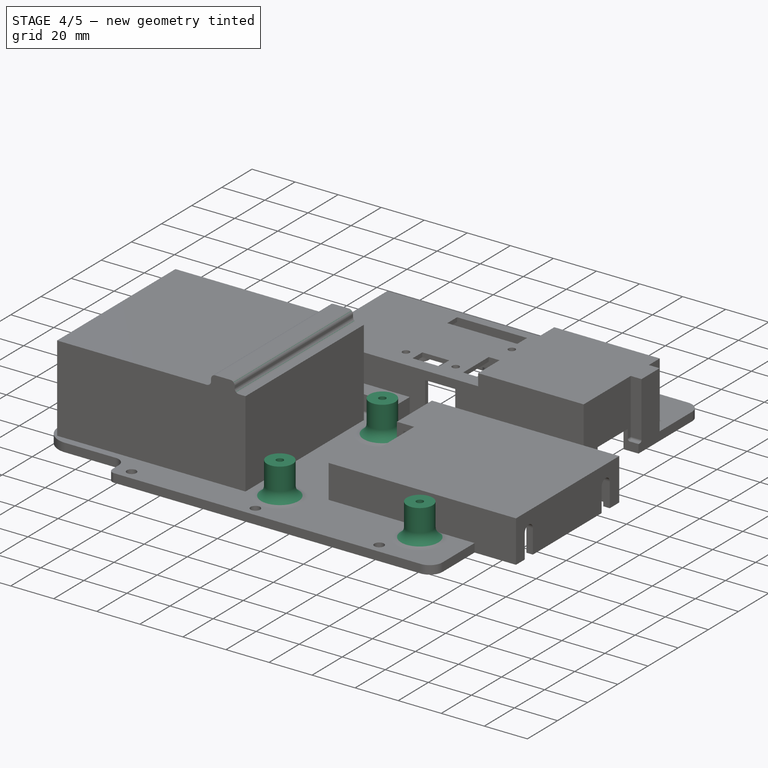
[diagram: stage 4 of 5 — iso view after this stage's code; geometry added in this stage tinted green]
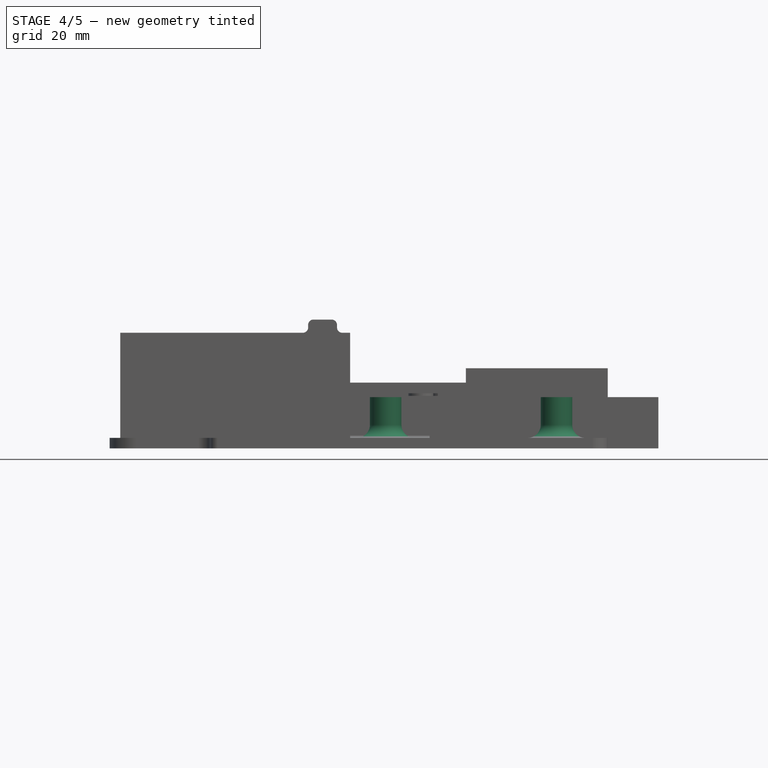
[diagram: stage 4 of 5 — front view after this stage's code; geometry added in this stage tinted green]
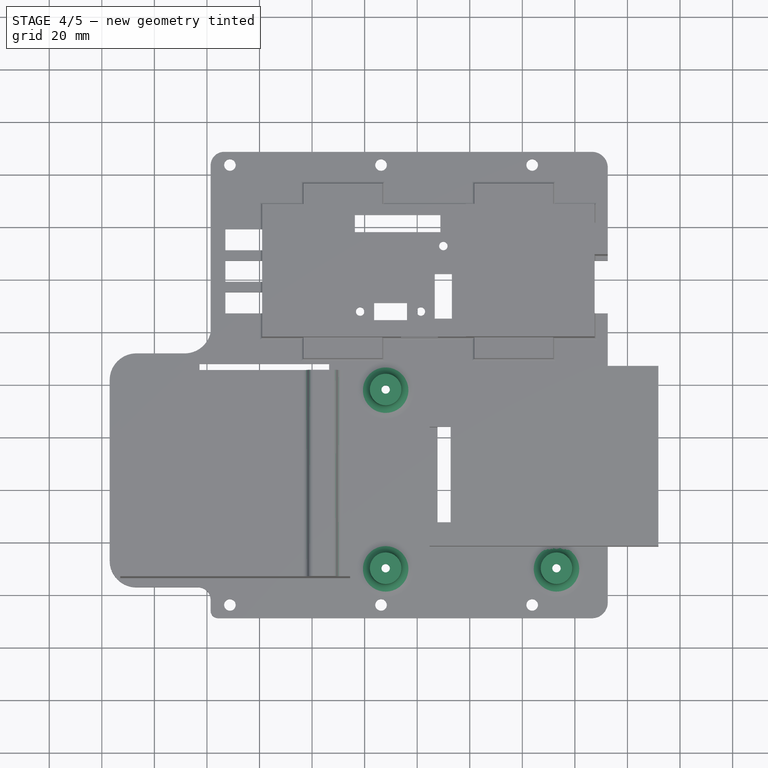
[diagram: stage 4 of 5 — top view after this stage's code; geometry added in this stage tinted green]
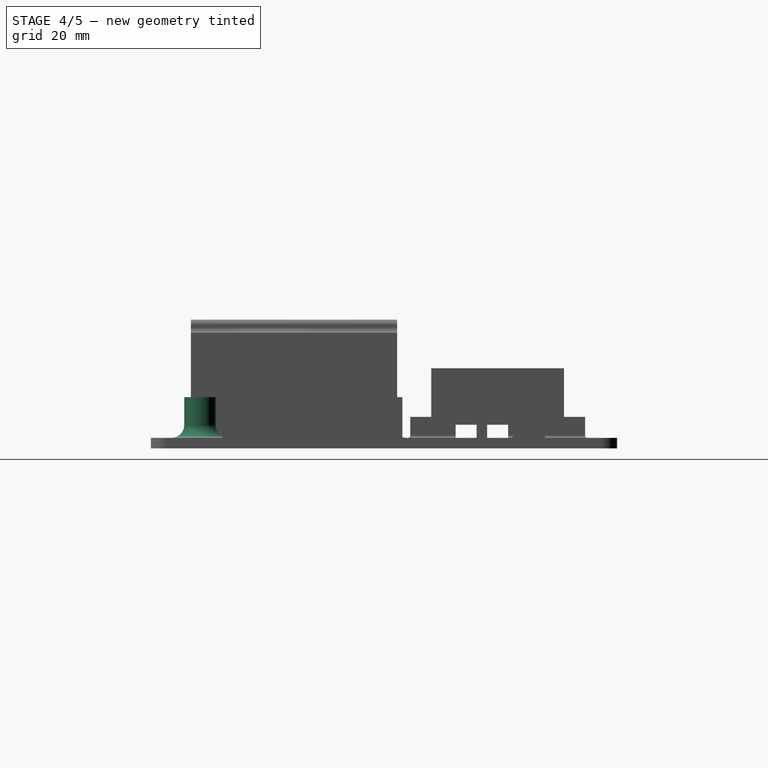
[diagram: stage 4 of 5 — right view after this stage's code; geometry added in this stage tinted green]
FEATURE [PartDesign::Pocket] Pocket014  label="balanceLeadRoofCutDownPocket"
  BaseFeature = -> Pocket013
  Length = 5
  Length2 = 100
  Profile = -> Sketch023
  Type = 0
  expr: Length = Spreadsheet.spacerOverlap
FEATURE [Sketcher::SketchObject] Sketch025  label="mountPillars"
  FullyConstrained = true
  MapMode = 5
  Support = -> [XY_Plane]
  expr: Constraints[12] = Spreadsheet.mountPillarRadius
  expr: Constraints[10] = Spreadsheet.mountPillarRadius
  expr: Constraints[3] = Spreadsheet.mountSeperationUpwards
  expr: Constraints[11] = Spreadsheet.mountPillarRadius
  expr: Constraints[4] = Spreadsheet.mountSeparationAcross
  sketch-geometry (5):
    g0: Circle CenterX=88 CenterY=-2 CenterZ=0 NormalX=0 NormalY=0 NormalZ=1 AngleXU=0 Radius=6
    g1: Circle CenterX=88 CenterY=-70 CenterZ=0 NormalX=0 NormalY=0 NormalZ=1 AngleXU=0 Radius=6
    g2: Circle CenterX=153 CenterY=-70 CenterZ=0 NormalX=0 NormalY=0 NormalZ=1 AngleXU=0 Radius=6
    g3: LineSegment StartX=88 StartY=-2 StartZ=0 EndX=88 EndY=-70 EndZ=0
    g4: LineSegment StartX=88 StartY=-70 StartZ=0 EndX=153 EndY=-70 EndZ=0
  constraints (13):
    c: Vertical(g3)
    c: Coincident(g4,g3)
    c: Horizontal(g4)
    c: Distance(g3) = 68
    c: Distance(g4) = 65
    c: DistanceX(g-1,g3) = 88
    c: DistanceY(g3,g-1) = 70
    c: Coincident(g0,g3)
    c: Coincident(g1,g3)
    c: Coincident(g2,g4)
    c: Radius(g0) = 6
    c: Radius(g1) = 6
    c: Radius(g2) = 6
FEATURE [PartDesign::Pad] Pad012  label="mountPillarsPad"
  BaseFeature = -> Pocket014
  Direction = (1,1,1)
  Length = 19.5
  Length2 = 100
  Profile = -> Sketch025
  Type = 0
  expr: Length = Spreadsheet.bmsHeight + Spreadsheet.bmsWallThickness
FEATURE [Sketcher::SketchObject] Sketch026  label="mountPillarsNutCutout"
  ExternalGeometry = -> [Sketch025]
  FullyConstrained = true
  MapMode = 5
  Support = -> [XY_Plane]
  expr: Constraints[59] = Spreadsheet.m3NutAcrossFlatSides
  expr: Constraints[36] = Spreadsheet.m3NutAcrossFlatSides
  expr: Constraints[37] = Spreadsheet.m3NutAcrossFlatSides
  sketch-geometry (21):
    g0: LineSegment StartX=88 StartY=-5.17543 StartZ=0 EndX=90.75 EndY=-3.58771 EndZ=0
    g1: LineSegment StartX=90.75 StartY=-3.58771 StartZ=0 EndX=90.75 EndY=-0.412287 EndZ=0
    g2: LineSegment StartX=90.75 StartY=-0.412287 StartZ=0 EndX=88 EndY=1.17543 EndZ=0
    g3: LineSegment StartX=88 StartY=1.17543 StartZ=0 EndX=85.25 EndY=-0.412287 EndZ=0
    g4: LineSegment StartX=85.25 StartY=-0.412287 StartZ=0 EndX=85.25 EndY=-3.58771 EndZ=0
    g5: LineSegment StartX=85.25 StartY=-3.58771 StartZ=0 EndX=88 EndY=-5.17543 EndZ=0
    g6: Circle CenterX=88 CenterY=-2 CenterZ=0 NormalX=0 NormalY=0 NormalZ=1 AngleXU=0 Radius=3.17543
    g7: LineSegment StartX=90.75 StartY=-71.5877 StartZ=0 EndX=90.75 EndY=-68.4123 EndZ=0
    g8: LineSegment StartX=90.75 StartY=-68.4123 StartZ=0 EndX=88 EndY=-66.8246 EndZ=0
    g9: LineSegment StartX=88 StartY=-66.8246 StartZ=0 EndX=85.25 EndY=-68.4123 EndZ=0
    g10: LineSegment StartX=85.25 StartY=-68.4123 StartZ=0 EndX=85.25 EndY=-71.5877 EndZ=0
    g11: LineSegment StartX=85.25 StartY=-71.5877 StartZ=0 EndX=88 EndY=-73.1754 EndZ=0
    g12: LineSegment StartX=88 StartY=-73.1754 StartZ=0 EndX=90.75 EndY=-71.5877 EndZ=0
    g13: Circle CenterX=88 CenterY=-70 CenterZ=0 NormalX=0 NormalY=0 NormalZ=1 AngleXU=0 Radius=3.17543
    g14: LineSegment StartX=155.75 StartY=-71.5877 StartZ=0 EndX=155.75 EndY=-68.4123 EndZ=0
    g15: LineSegment StartX=155.75 StartY=-68.4123 StartZ=0 EndX=153 EndY=-66.8246 EndZ=0
    g16: LineSegment StartX=153 StartY=-66.8246 StartZ=0 EndX=150.25 EndY=-68.4123 EndZ=0
    g17: LineSegment StartX=150.25 StartY=-68.4123 StartZ=0 EndX=150.25 EndY=-71.5877 EndZ=0
    g18: LineSegment StartX=150.25 StartY=-71.5877 StartZ=0 EndX=153 EndY=-73.1754 EndZ=0
    g19: LineSegment StartX=153 StartY=-73.1754 StartZ=0 EndX=155.75 EndY=-71.5877 EndZ=0
    g20: Circle CenterX=153 CenterY=-70 CenterZ=0 NormalX=0 NormalY=0 NormalZ=1 AngleXU=0 Radius=3.17543
  constraints (48):
    c: Coincident(g0,g1)
    c: Coincident(g1,g2)
    c: Coincident(g2,g3)
    c: Coincident(g3,g4)
    c: Coincident(g4,g5)
    c: Coincident(g5,g0)
    c: Equal(g0, g1-g5) x5
    c: PointOnObject(g0,g6)
    c: PointOnObject(g1,g6)
    c: PointOnObject(g2,g6)
    c: PointOnObject(g3,g6)
    c: PointOnObject(g4,g6)
    c: PointOnObject(g5,g6)
    c: Coincident(g6,g-3)
    c: Coincident(g7,g8)
    c: Coincident(g8,g9)
    c: Coincident(g9,g10)
    c: Coincident(g10,g11)
    c: Coincident(g11,g12)
    c: Coincident(g12,g7)
    c: Equal(g7, g8-g12) x5
    c: PointOnObject(g7,g13)
    c: PointOnObject(g8,g13)
    c: PointOnObject(g9,g13)
    c: PointOnObject(g10,g13)
    c: PointOnObject(g11,g13)
    c: PointOnObject(g12,g13)
    c: Coincident(g13,g-4)
    c: Distance(g3,g0) = 5.5
    c: Distance(g10,g7) = 5.5
    c: Vertical(g7)
    c: Vertical(g1)
    c: Coincident(g14,g15)
    c: Coincident(g15,g16)
    c: Coincident(g16,g17)
    c: Coincident(g17,g18)
    c: Coincident(g18,g19)
    c: Coincident(g19,g14)
    c: Equal(g14, g15-g19) x5
    c: PointOnObject(g14,g20)
    c: PointOnObject(g15,g20)
    c: PointOnObject(g16,g20)
    c: PointOnObject(g17,g20)
    c: PointOnObject(g18,g20)
    c: PointOnObject(g19,g20)
    c: Coincident(g20,g-5)
    c: Vertical(g14)
    c: Distance(g17,g14) = 5.5
FEATURE [PartDesign::Pocket] Pocket015  label="mountPillarsNutCutoutPocket"
  BaseFeature = -> Pad012
  Length = 15.5
  Length2 = 100
  Profile = -> Sketch026
  Reversed = true
  Type = 0
  expr: Length = Spreadsheet.bmsHeight + Spreadsheet.bmsWallThickness - 4
FEATURE [Sketcher::SketchObject] Sketch027  label="mountPillarsBoltHole"
  ExternalGeometry = -> [Sketch025]
  FullyConstrained = true
  MapMode = 5
  Support = -> [XY_Plane]
  expr: Constraints[5] = Spreadsheet.m3BoltRadius
  expr: Constraints[4] = Spreadsheet.m3BoltRadius
  expr: Constraints[3] = Spreadsheet.m3BoltRadius
  sketch-geometry (3):
    g0: Circle CenterX=88 CenterY=-2 CenterZ=0 NormalX=0 NormalY=0 NormalZ=1 AngleXU=0 Radius=1.6
    g1: Circle CenterX=88 CenterY=-70 CenterZ=0 NormalX=0 NormalY=0 NormalZ=1 AngleXU=0 Radius=1.6
    g2: Circle CenterX=153 CenterY=-70 CenterZ=0 NormalX=0 NormalY=0 NormalZ=1 AngleXU=0 Radius=1.6
  constraints (6):
    c: Coincident(g0,g-3)
    c: Coincident(g1,g-4)
    c: Coincident(g2,g-5)
    c: Radius(g0) = 1.6
    c: Radius(g1) = 1.6
    c: Radius(g2) = 1.6
FEATURE [PartDesign::Pocket] Pocket016  label="mountPillarsBoltHolePocket"
  BaseFeature = -> Pocket015
  Length = 5
  Length2 = 100
  Profile = -> Sketch027
  Reversed = true
  Type = 1
FEATURE [PartDesign::Fillet] Fillet  label="mountPillarsFillet"
  Base = -> Pocket016 [Edge141,Edge142,Edge139]
  BaseFeature = -> Pocket016
  Radius = 5
  SupportTransform = false
FEATURE [PartDesign::Fillet] Fillet001  label="batteryBalanceLeadOvercarryFillet"
  Base = -> Fillet [Edge486,Edge751,Edge755,Edge488]
  BaseFeature = -> Fillet
  Radius = 2
  SupportTransform = false
FEATURE [PartDesign::Fillet] Fillet002  label="escBaseFillet"
  Base = -> Fillet001 [Edge82,Edge84,Edge80,Edge86,Edge78,Edge76,Edge72,Edge70,Edge68,Edge66,Edge74,Edge79,Edge71,Edge63,Edge61,Edge59,Edge57,Edge55,Edge53,Edge51,Edge49,Edge43,Edge47,Edge45,Edge456,Edge178]
  BaseFeature = -> Fillet001
  Radius = 1
  SupportTransform = false
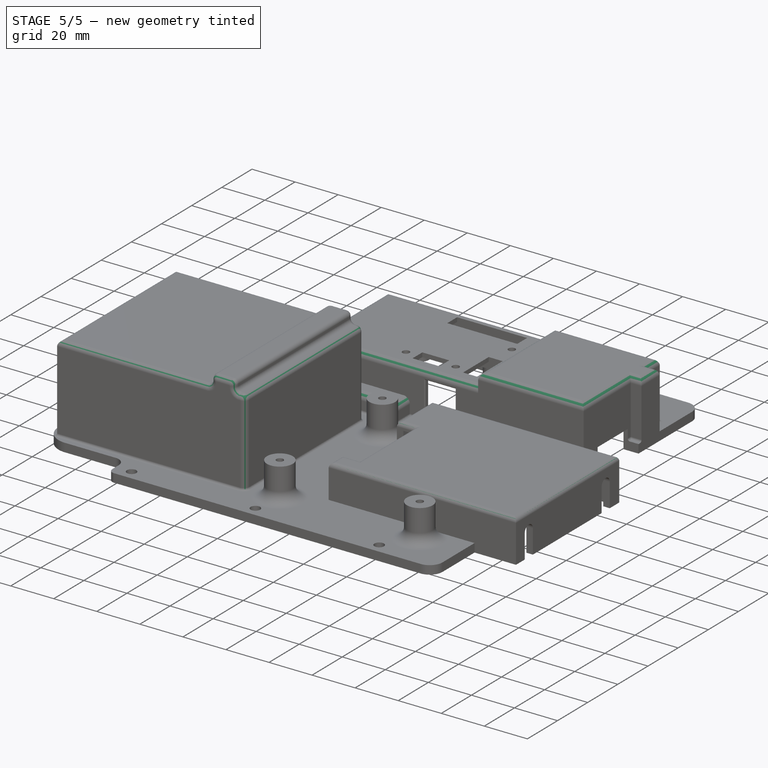
[diagram: stage 5 of 5 — iso view after this stage's code; geometry added in this stage tinted green]
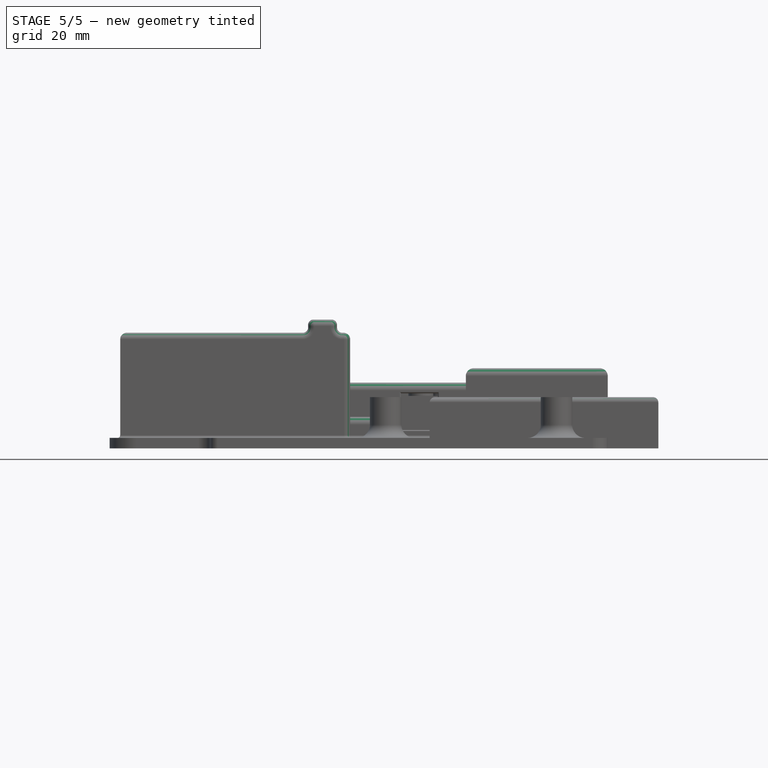
[diagram: stage 5 of 5 — front view after this stage's code; geometry added in this stage tinted green]
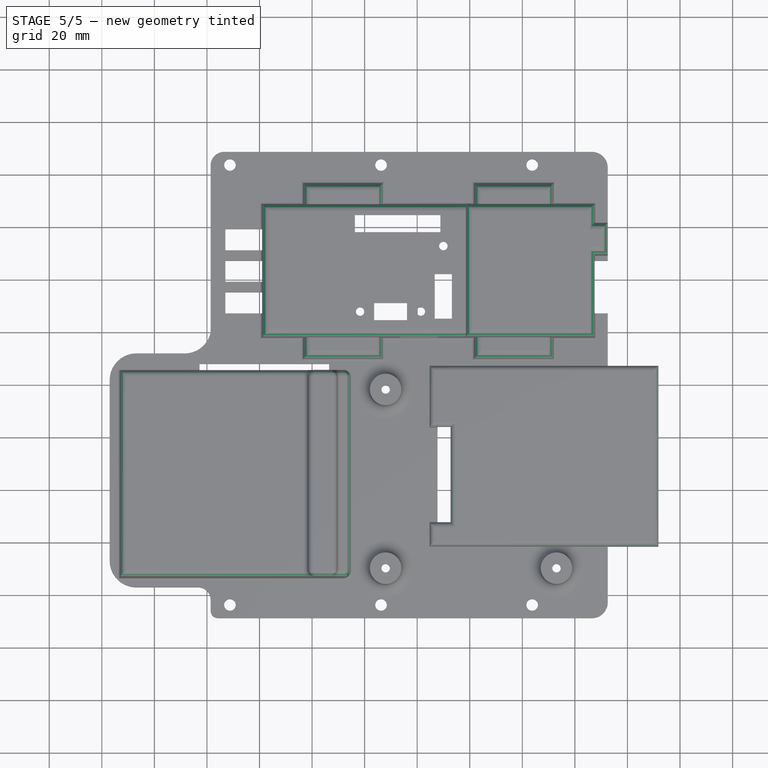
[diagram: stage 5 of 5 — top view after this stage's code; geometry added in this stage tinted green]
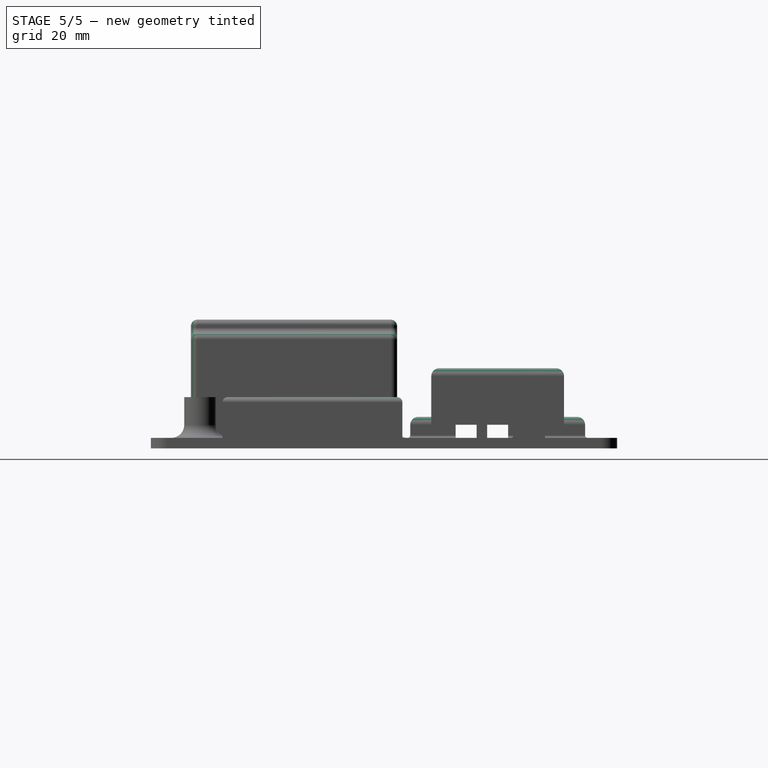
[diagram: stage 5 of 5 — right view after this stage's code; geometry added in this stage tinted green]
FEATURE [PartDesign::Fillet] Fillet003  label="escCableCoverFillet"
  Base = -> Fillet002 [Face321]
  BaseFeature = -> Fillet002
  Radius = 3
  SupportTransform = false
FEATURE [PartDesign::Fillet] Fillet004  label="escWingsFillet"
  Base = -> Fillet003 [Edge528,Edge526,Edge524,Edge514,Edge506,Edge495,Edge586,Edge590,Edge589,Edge584,Edge582,Edge580]
  BaseFeature = -> Fillet003
  Radius = 3
  SupportTransform = false
FEATURE [PartDesign::Fillet] Fillet005  label="escTopCoverFillet"
  Base = -> Fillet004 [Edge127,Edge125,Edge23]
  BaseFeature = -> Fillet004
  Radius = 3
  SupportTransform = false
FEATURE [PartDesign::Fillet] Fillet006  label="topOfBatteryFillet"
  Base = -> Fillet005 [Face296]
  BaseFeature = -> Fillet005
  Radius = 2.5
  SupportTransform = false
FEATURE [PartDesign::Fillet] Fillet007  label="topfrontOfBatteryFillet"
  Base = -> Fillet006 [Edge18]
  BaseFeature = -> Fillet006
  Radius = 2.5
  SupportTransform = false
FEATURE [PartDesign::Fillet] Fillet008  label="baseOfBatteryFillet"
  Base = -> Fillet007 [Edge23,Edge26,Edge25,Edge12,Edge4,Edge18,Edge24]
  BaseFeature = -> Fillet007
  Radius = 1
  SupportTransform = false
FEATURE [PartDesign::Fillet] Fillet009  label="bmsTopFillet"
  Base = -> Fillet008 [Face157]
  BaseFeature = -> Fillet008
  Radius = 2
  SupportTransform = false
FEATURE [PartDesign::Fillet] Fillet010  label="usbPortFillet"
  Base = -> Fillet009 [Edge925,Edge924,Edge923,Edge641]
  BaseFeature = -> Fillet009
  Radius = 0.5
  SupportTransform = false
FEATURE [PartDesign::Body] Body  label="housing"
  Group = -> [Sketch,Binder,Sketch001,Sketch002,Sketch003,DatumPlane,Sketch004,Sketch005,DatumPlane001,Sketch006,Sketch007,Sketch008,Sketch009,Sketch010,DatumPlane002,Sketch011,Pad,Pad007,Pad006,Pocket,Pocket001,Pad003,Pocket002,Pad004,Pad005,Pocket003,Pocket004,DatumPlane004,Sketch012,Pocket005,Sketch013,Pocket006,Sketch014,Pocket007,DatumPlane005,Sketch015,Pad008,Sketch016,Sketch017,Pad009,Pocket008,+32 more]
  Origin = -> Origin
  Tip = -> Fillet010
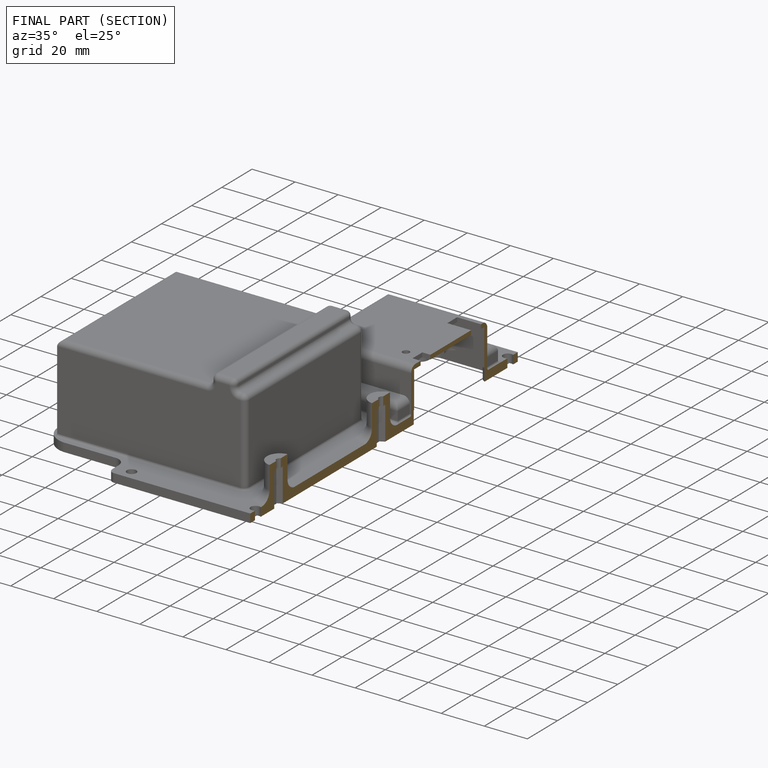
[diagram: finished part — half-section view (interior)]
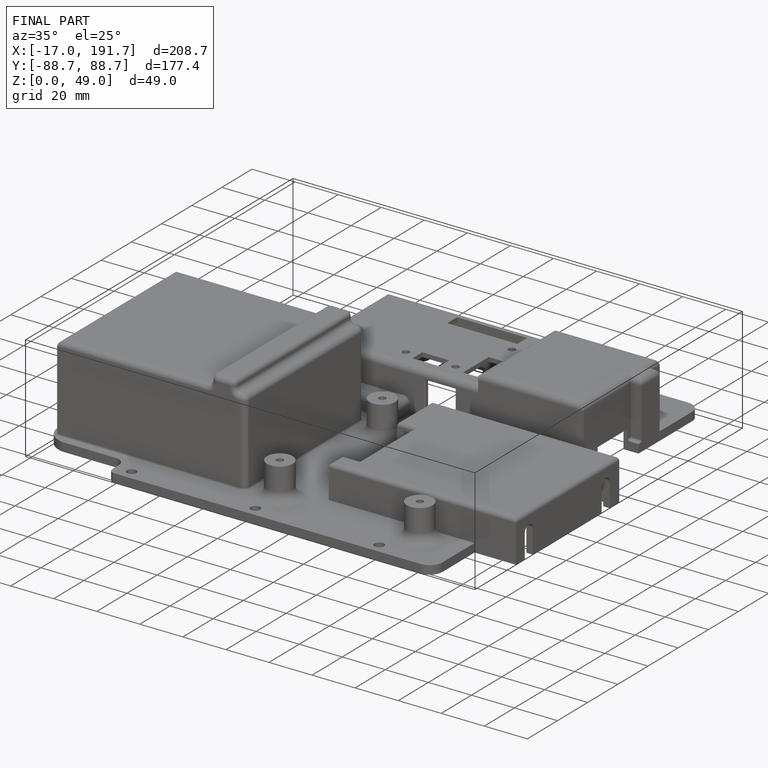
[diagram: finished part — iso view with bounding-box wireframe]
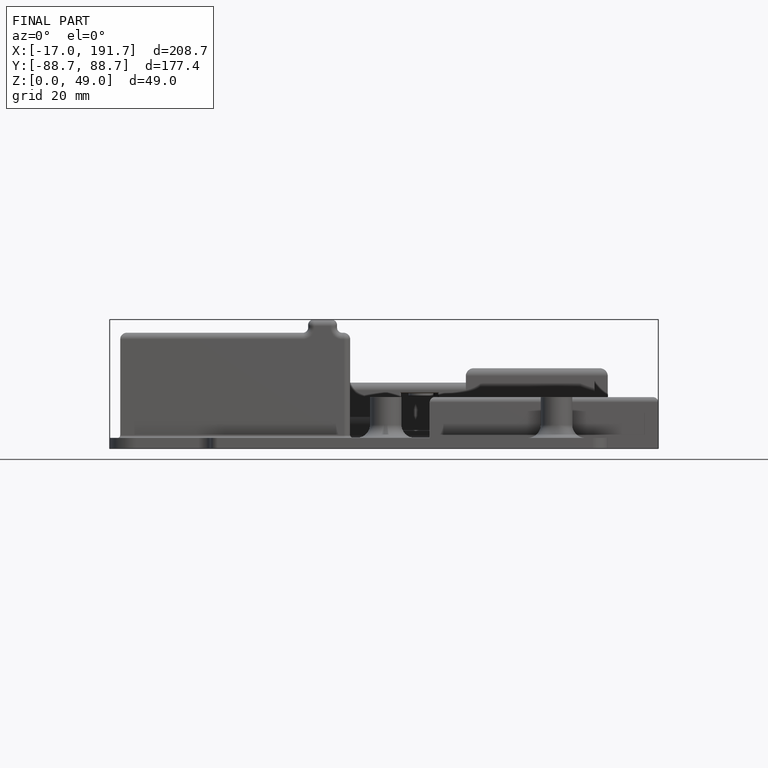
[diagram: finished part — front view with bounding-box wireframe]
